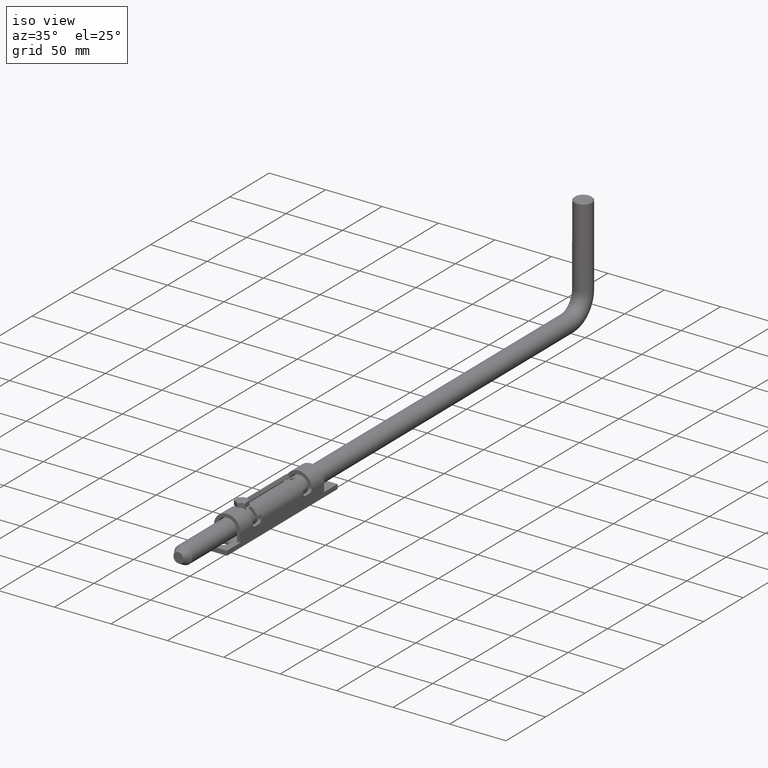
[diagram: clean part render]
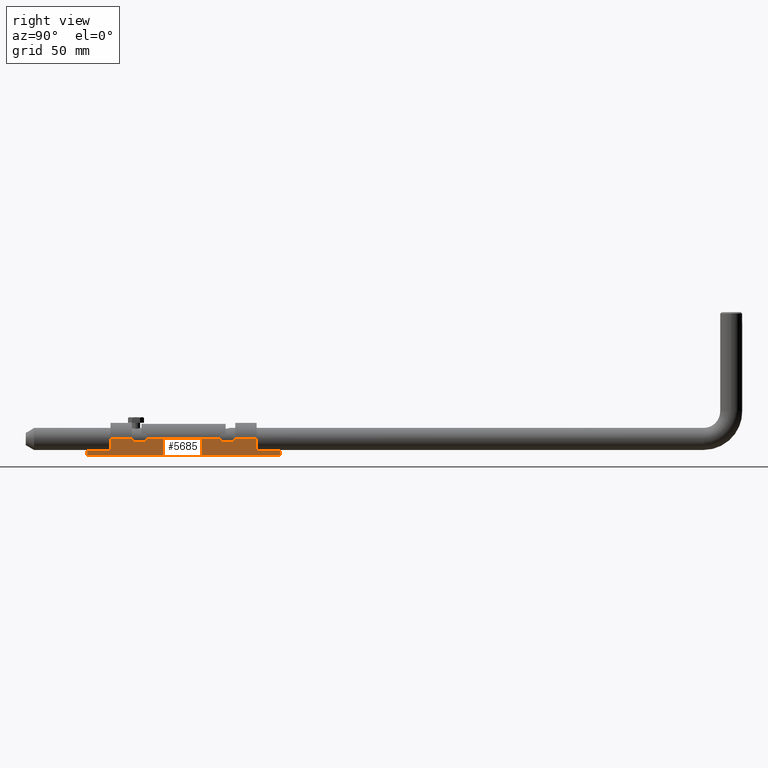
[diagram: tour spotlight — one face highlighted and labeled with its STEP entity id]
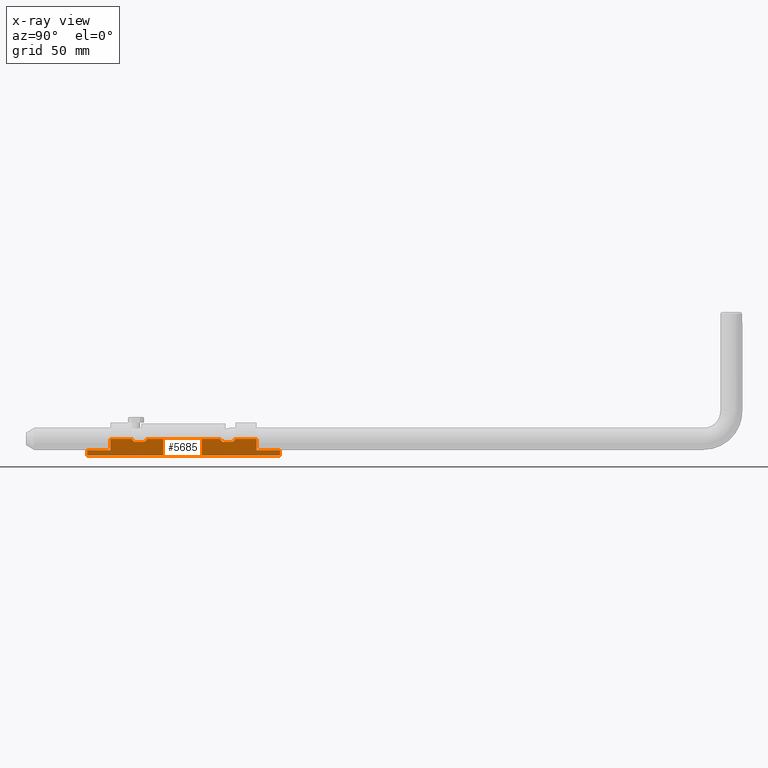
[diagram: x-ray of the same camera — body ghosted, this tour face saturated]
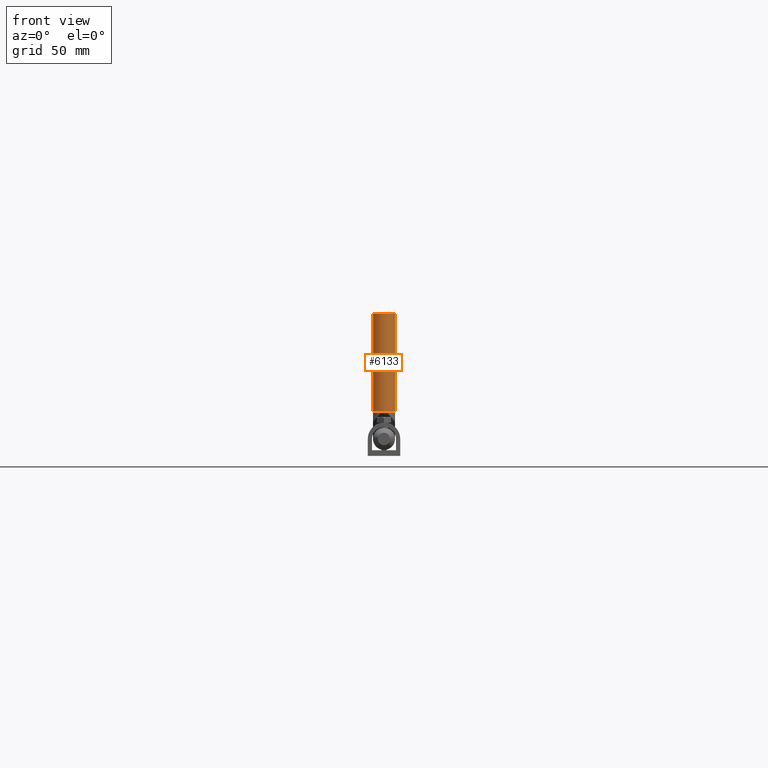
[diagram: tour spotlight — one face highlighted and labeled with its STEP entity id]
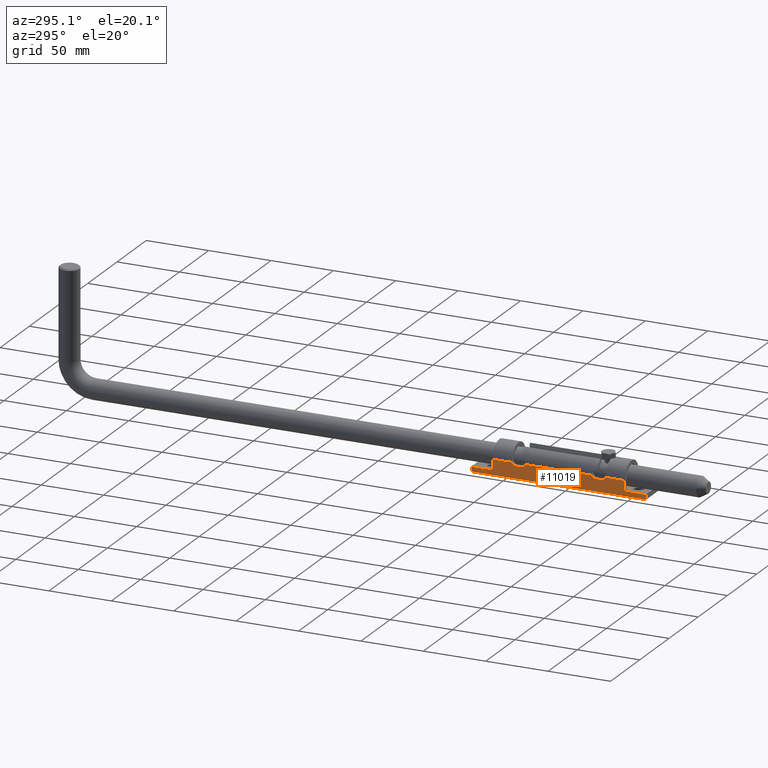
[diagram: tour spotlight — one face highlighted and labeled with its STEP entity id]
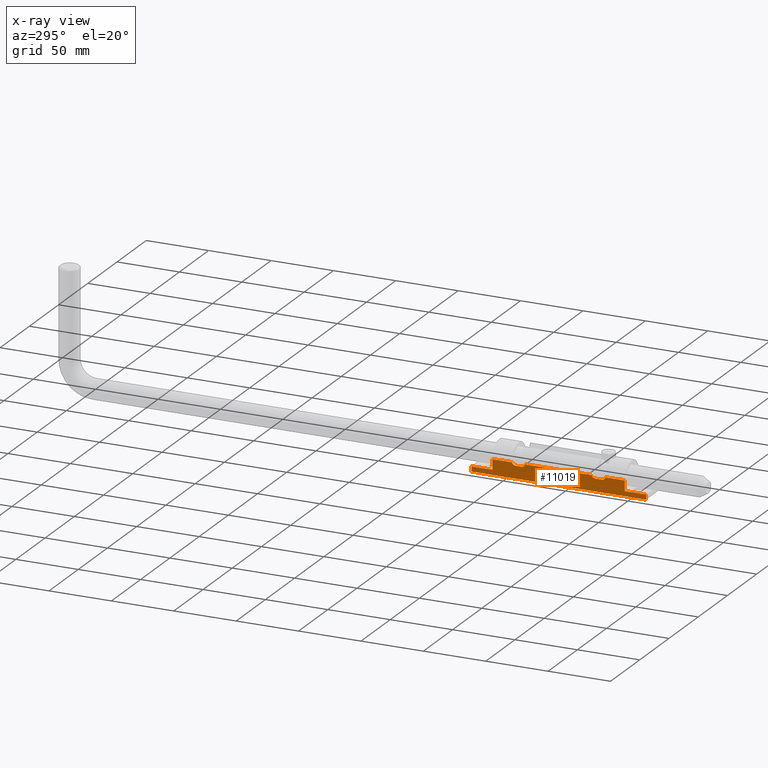
[diagram: x-ray of the same camera — body ghosted, this tour face saturated]
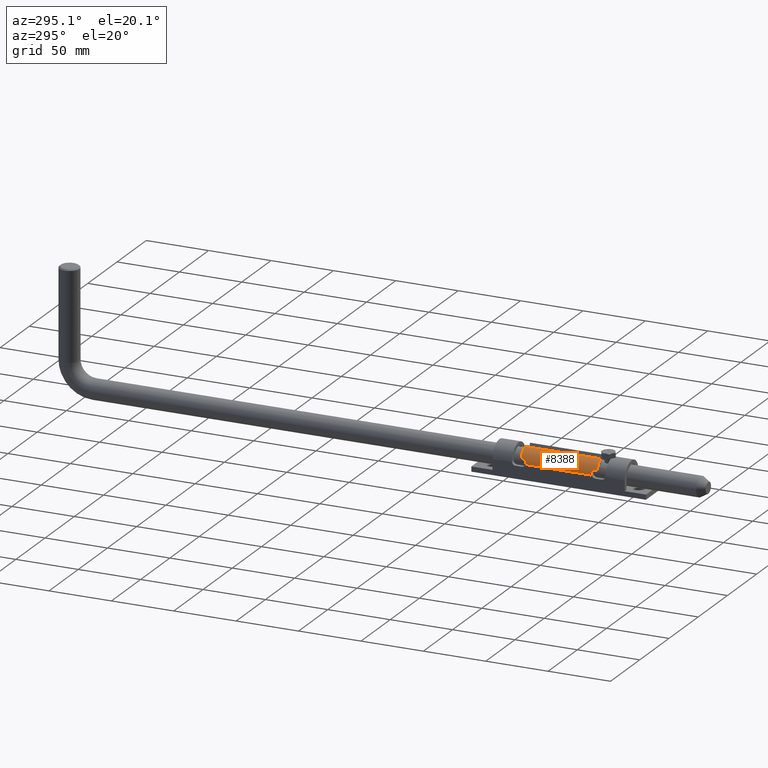
[diagram: tour spotlight — one face highlighted and labeled with its STEP entity id]
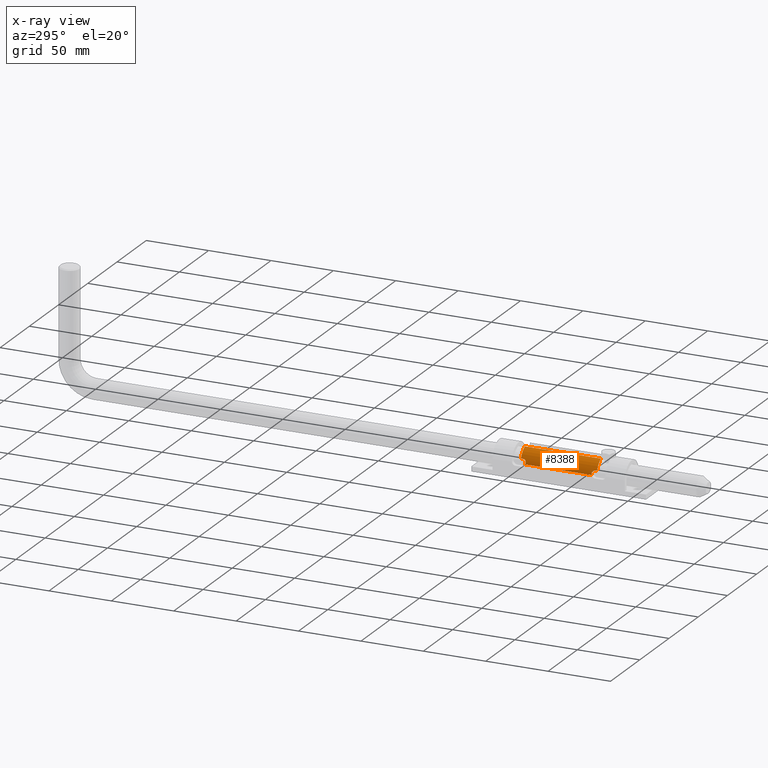
[diagram: x-ray of the same camera — body ghosted, this tour face saturated]
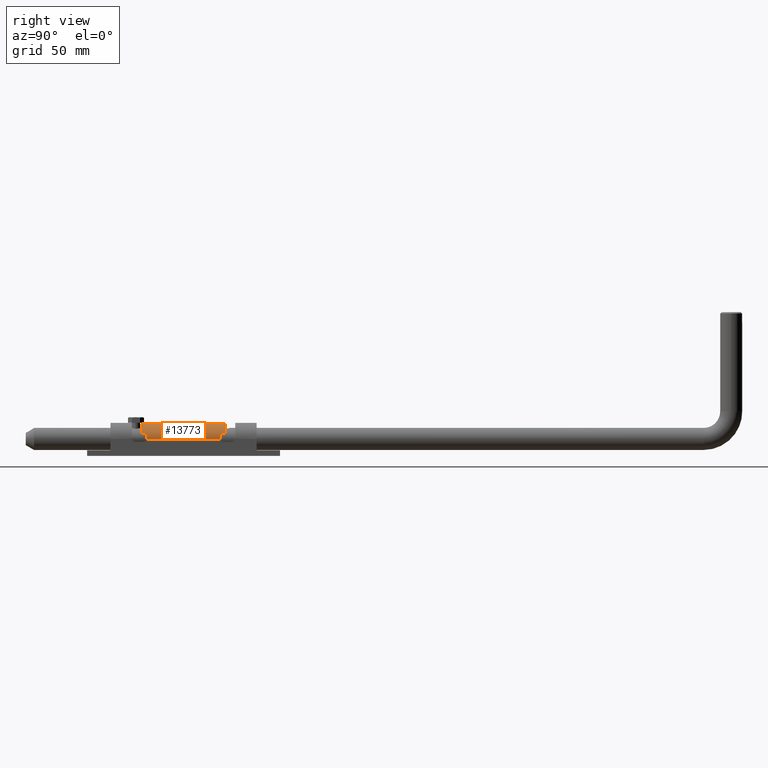
[diagram: tour spotlight — one face highlighted and labeled with its STEP entity id]
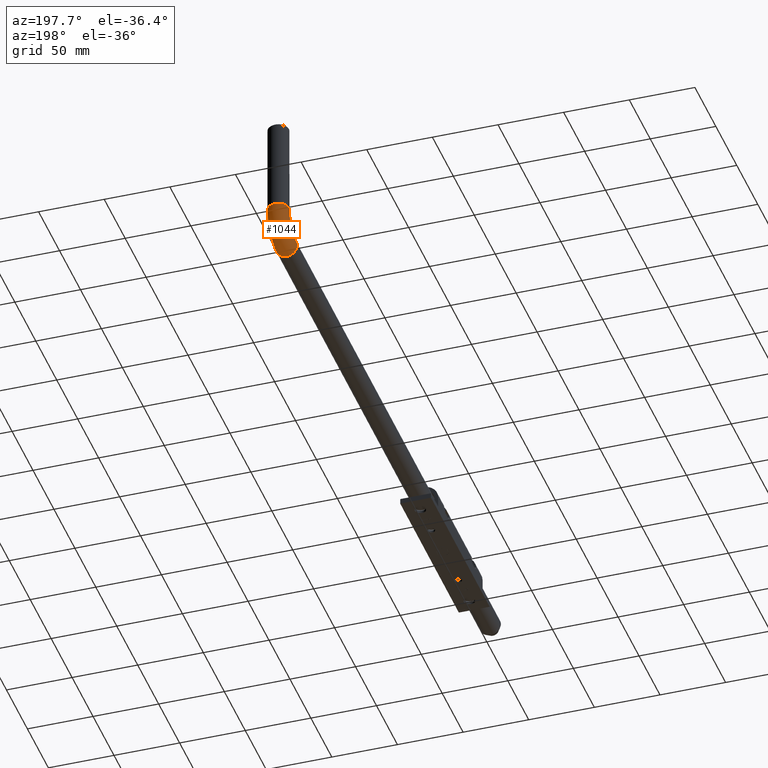
[diagram: tour spotlight — one face highlighted and labeled with its STEP entity id]
A machine part: a face-by-face anatomy tour. The part has 329 B-rep faces; the first image is the clean iso view, then the 6 largest visible faces are spotlighted one at a time (largest first), each with its STEP entity span.

Face 1 — right view, entity #5685. An x-ray twin of the same camera follows (body ghosted, this face saturated) — the face is partly hidden behind the body. In plain terms, the highlighted planar face has unit normal (-1, -0, 0).
Definition (entity closure, byte-faithful):
#109 = CIRCLE ( 'NONE', #14439, 3.000000000000002665 ) ;
#145 = ORIENTED_EDGE ( 'NONE', *, *, #15905, .T. ) ;
#244 = LINE ( 'NONE', #12305, #14376 ) ;
#396 = CARTESIAN_POINT ( 'NONE',  ( 11.74999999999999112, 70.00000000000000000, 2.000000000000001776 ) ) ;
#527 = LINE ( 'NONE', #8843, #7354 ) ;
#671 = VECTOR ( 'NONE', #3320, 1000.000000000000000 ) ;
#996 = VECTOR ( 'NONE', #7981, 1000.000000000000000 ) ;
#1017 = CARTESIAN_POINT ( 'NONE',  ( 11.75000000000000888, -70.00000000000000000, -2.000000000000001776 ) ) ;
#1029 = CARTESIAN_POINT ( 'NONE',  ( 11.74999999999998934, 37.40473750965556121, 10.25000000000000888 ) ) ;
#1090 = VERTEX_POINT ( 'NONE', #5280 ) ;
#1315 = VERTEX_POINT ( 'NONE', #396 ) ;
#1480 = VERTEX_POINT ( 'NONE', #1017 ) ;
#1537 = CARTESIAN_POINT ( 'NONE',  ( 11.74999999999999112, 70.00000000000000000, 2.000000000000001776 ) ) ;
#1592 = EDGE_CURVE ( 'NONE', #16178, #5548, #14505, .T. ) ;
#1649 = DIRECTION ( 'NONE',  ( -1.000000000000000000, -1.239088197126290817E-16, 0.000000000000000000 ) ) ;
#1915 = ORIENTED_EDGE ( 'NONE', *, *, #9092, .T. ) ;
#1934 = PLANE ( 'NONE',  #8190 ) ;
#2436 = ORIENTED_EDGE ( 'NONE', *, *, #11707, .T. ) ;
#2515 = VERTEX_POINT ( 'NONE', #16413 ) ;
#2621 = LINE ( 'NONE', #10146, #14415 ) ;
#2738 = EDGE_LOOP ( 'NONE', ( #13064, #11346, #16852, #17565, #13180, #1915, #17037, #2436, #5639, #15455, #3828, #10346, #145, #6957, #9065, #5035 ) ) ;
#2753 = CARTESIAN_POINT ( 'NONE',  ( 11.74999999999998934, -53.00000000000000000, 10.25000000000000888 ) ) ;
#2849 = LINE ( 'NONE', #1537, #12290 ) ;
#2880 = CARTESIAN_POINT ( 'NONE',  ( 11.74999999999998934, 53.00000000000000000, 10.25000000000000888 ) ) ;
#2952 = DIRECTION ( 'NONE',  ( 0.000000000000000000, 1.000000000000000000, 0.000000000000000000 ) ) ;
#3049 = VECTOR ( 'NONE', #9100, 1000.000000000000000 ) ;
#3320 = DIRECTION ( 'NONE',  ( -0.000000000000000000, -0.000000000000000000, -1.000000000000000000 ) ) ;
#3385 = CARTESIAN_POINT ( 'NONE',  ( 11.74999999999999645, 34.49999999999999289, 11.00000000000000000 ) ) ;
#3828 = ORIENTED_EDGE ( 'NONE', *, *, #1592, .F. ) ;
#3837 = CARTESIAN_POINT ( 'NONE',  ( 11.74999999999998934, -53.00000000000000000, 10.25000000000000888 ) ) ;
#4056 = CARTESIAN_POINT ( 'NONE',  ( 11.75000000000000888, -70.00000000000000000, 2.000000000000001776 ) ) ;
#4196 = CARTESIAN_POINT ( 'NONE',  ( 11.74999999999999112, -53.00000000000000000, 2.000000000000001776 ) ) ;
#4546 = EDGE_CURVE ( 'NONE', #13029, #2515, #527, .T. ) ;
#4666 = VECTOR ( 'NONE', #5742, 1000.000000000000000 ) ;
#4815 = DIRECTION ( 'NONE',  ( 0.000000000000000000, -1.000000000000000000, 0.000000000000000000 ) ) ;
#4883 = DIRECTION ( 'NONE',  ( 1.416100796715759877E-16, 0.000000000000000000, -1.000000000000000000 ) ) ;
#5035 = ORIENTED_EDGE ( 'NONE', *, *, #17414, .F. ) ;
#5101 = AXIS2_PLACEMENT_3D ( 'NONE', #9834, #1649, #11228 ) ;
#5280 = CARTESIAN_POINT ( 'NONE',  ( 11.75000000000000888, -29.50000000000000355, 8.000000000000000000 ) ) ;
#5544 = DIRECTION ( 'NONE',  ( -1.000000000000000000, -1.239088197126290817E-16, 0.000000000000000000 ) ) ;
#5548 = VERTEX_POINT ( 'NONE', #4196 ) ;
#5639 = ORIENTED_EDGE ( 'NONE', *, *, #9044, .T. ) ;
#5653 = VERTEX_POINT ( 'NONE', #17074 ) ;
#5685 = ADVANCED_FACE ( 'NONE', ( #6239 ), #1934, .F. ) ;
#5742 = DIRECTION ( 'NONE',  ( 0.000000000000000000, -1.000000000000000000, 0.000000000000000000 ) ) ;
#5833 = EDGE_CURVE ( 'NONE', #16178, #1480, #10337, .T. ) ;
#5920 = CARTESIAN_POINT ( 'NONE',  ( 11.74999999999999112, 70.00000000000000000, 2.000000000000001776 ) ) ;
#5962 = DIRECTION ( 'NONE',  ( -0.000000000000000000, -1.000000000000000000, -0.000000000000000000 ) ) ;
#6239 = FACE_OUTER_BOUND ( 'NONE', #2738, .T. ) ;
#6471 = CARTESIAN_POINT ( 'NONE',  ( 11.75000000000000355, -29.50000000000000355, 11.00000000000000000 ) ) ;
#6601 = CARTESIAN_POINT ( 'NONE',  ( 11.74999999999999112, 70.00000000000000000, 2.000000000000001776 ) ) ;
#6693 = CARTESIAN_POINT ( 'NONE',  ( 11.74999999999998934, 26.59526249034443524, 10.25000000000000888 ) ) ;
#6911 = VECTOR ( 'NONE', #15113, 1000.000000000000000 ) ;
#6957 = ORIENTED_EDGE ( 'NONE', *, *, #7468, .F. ) ;
#7354 = VECTOR ( 'NONE', #5962, 1000.000000000000000 ) ;
#7468 = EDGE_CURVE ( 'NONE', #1315, #16669, #7501, .T. ) ;
#7501 = LINE ( 'NONE', #8770, #671 ) ;
#7590 = CARTESIAN_POINT ( 'NONE',  ( 11.75000000000000888, -70.00000000000000000, 2.000000000000001776 ) ) ;
#7689 = EDGE_CURVE ( 'NONE', #17196, #15023, #244, .T. ) ;
#7710 = VECTOR ( 'NONE', #4883, 1000.000000000000000 ) ;
#7981 = DIRECTION ( 'NONE',  ( -1.239088197126290570E-16, 1.000000000000000000, -0.000000000000000000 ) ) ;
#8190 = AXIS2_PLACEMENT_3D ( 'NONE', #5920, #10011, #10184 ) ;
#8312 = DIRECTION ( 'NONE',  ( 0.000000000000000000, -1.000000000000000000, 0.000000000000000000 ) ) ;
#8322 = LINE ( 'NONE', #11518, #4666 ) ;
#8770 = CARTESIAN_POINT ( 'NONE',  ( 11.74999999999999112, 70.00000000000000000, 2.000000000000001776 ) ) ;
#8778 = CARTESIAN_POINT ( 'NONE',  ( 11.74999999999999112, 70.00000000000000000, -2.000000000000001776 ) ) ;
#8793 = CARTESIAN_POINT ( 'NONE',  ( 11.74999999999998934, 53.00000000000000000, 10.25000000000000888 ) ) ;
#8843 = CARTESIAN_POINT ( 'NONE',  ( 11.74999999999998934, 53.00000000000000000, 10.25000000000000888 ) ) ;
#8953 = VERTEX_POINT ( 'NONE', #17153 ) ;
#8975 = CARTESIAN_POINT ( 'NONE',  ( 11.75000000000000888, -34.49999999999999289, 8.000000000000000000 ) ) ;
#9044 = EDGE_CURVE ( 'NONE', #5653, #9276, #17564, .T. ) ;
#9065 = ORIENTED_EDGE ( 'NONE', *, *, #14759, .F. ) ;
#9092 = EDGE_CURVE ( 'NONE', #2515, #1090, #10709, .T. ) ;
#9100 = DIRECTION ( 'NONE',  ( -0.000000000000000000, -0.000000000000000000, -1.000000000000000000 ) ) ;
#9138 = AXIS2_PLACEMENT_3D ( 'NONE', #6471, #17388, #14767 ) ;
#9177 = VECTOR ( 'NONE', #2952, 1000.000000000000000 ) ;
#9276 = VERTEX_POINT ( 'NONE', #3837 ) ;
#9444 = EDGE_CURVE ( 'NONE', #13440, #1090, #12831, .T. ) ;
#9496 = LINE ( 'NONE', #2753, #6911 ) ;
#9581 = EDGE_CURVE ( 'NONE', #14346, #10054, #8322, .T. ) ;
#9777 = CARTESIAN_POINT ( 'NONE',  ( 11.75000000000000888, -37.50000000000000000, 8.000000000000000000 ) ) ;
#9834 = CARTESIAN_POINT ( 'NONE',  ( 11.74999999999999289, 29.50000000000000355, 11.00000000000000000 ) ) ;
#10011 = DIRECTION ( 'NONE',  ( -1.000000000000000000, -1.239088197126290817E-16, 0.000000000000000000 ) ) ;
#10054 = VERTEX_POINT ( 'NONE', #14707 ) ;
#10146 = CARTESIAN_POINT ( 'NONE',  ( 11.74999999999999112, 70.00000000000000000, -2.000000000000001776 ) ) ;
#10184 = DIRECTION ( 'NONE',  ( 1.239088197126290817E-16, -1.000000000000000000, 0.000000000000000000 ) ) ;
#10334 = EDGE_CURVE ( 'NONE', #10054, #13029, #12326, .T. ) ;
#10337 = LINE ( 'NONE', #7590, #3049 ) ;
#10346 = ORIENTED_EDGE ( 'NONE', *, *, #5833, .T. ) ;
#10709 = CIRCLE ( 'NONE', #9138, 2.999999999999999112 ) ;
#11228 = DIRECTION ( 'NONE',  ( 0.000000000000000000, -1.000000000000000000, 0.000000000000000000 ) ) ;
#11346 = ORIENTED_EDGE ( 'NONE', *, *, #11917, .T. ) ;
#11518 = CARTESIAN_POINT ( 'NONE',  ( 11.75000000000000888, 37.50000000000000000, 8.000000000000000000 ) ) ;
#11535 = DIRECTION ( 'NONE',  ( -1.239088197126290570E-16, 1.000000000000000000, -0.000000000000000000 ) ) ;
#11707 = EDGE_CURVE ( 'NONE', #13440, #5653, #16605, .T. ) ;
#11710 = CARTESIAN_POINT ( 'NONE',  ( 11.74999999999998934, 53.00000000000000000, 10.25000000000000888 ) ) ;
#11917 = EDGE_CURVE ( 'NONE', #15023, #14346, #109, .T. ) ;
#12290 = VECTOR ( 'NONE', #16561, 1000.000000000000000 ) ;
#12305 = CARTESIAN_POINT ( 'NONE',  ( 11.74999999999998934, 53.00000000000000000, 10.25000000000000888 ) ) ;
#12326 = CIRCLE ( 'NONE', #5101, 2.999999999999999112 ) ;
#12367 = DIRECTION ( 'NONE',  ( -0.000000000000000000, -1.000000000000000000, -0.000000000000000000 ) ) ;
#12831 = LINE ( 'NONE', #9777, #9177 ) ;
#13029 = VERTEX_POINT ( 'NONE', #6693 ) ;
#13064 = ORIENTED_EDGE ( 'NONE', *, *, #7689, .T. ) ;
#13180 = ORIENTED_EDGE ( 'NONE', *, *, #4546, .T. ) ;
#13440 = VERTEX_POINT ( 'NONE', #8975 ) ;
#13717 = CARTESIAN_POINT ( 'NONE',  ( 11.75000000000000355, -34.49999999999999289, 11.00000000000000000 ) ) ;
#14228 = DIRECTION ( 'NONE',  ( -0.000000000000000000, -1.000000000000000000, -0.000000000000000000 ) ) ;
#14343 = VECTOR ( 'NONE', #14228, 1000.000000000000000 ) ;
#14346 = VERTEX_POINT ( 'NONE', #15375 ) ;
#14376 = VECTOR ( 'NONE', #12367, 1000.000000000000000 ) ;
#14415 = VECTOR ( 'NONE', #11535, 1000.000000000000000 ) ;
#14439 = AXIS2_PLACEMENT_3D ( 'NONE', #3385, #17110, #4815 ) ;
#14505 = LINE ( 'NONE', #6601, #996 ) ;
#14594 = LINE ( 'NONE', #8793, #7710 ) ;
#14658 = AXIS2_PLACEMENT_3D ( 'NONE', #13717, #5544, #8312 ) ;
#14707 = CARTESIAN_POINT ( 'NONE',  ( 11.75000000000000888, 29.50000000000000355, 8.000000000000000000 ) ) ;
#14759 = EDGE_CURVE ( 'NONE', #8953, #1315, #2849, .T. ) ;
#14767 = DIRECTION ( 'NONE',  ( 0.000000000000000000, -1.000000000000000000, 0.000000000000000000 ) ) ;
#15023 = VERTEX_POINT ( 'NONE', #1029 ) ;
#15113 = DIRECTION ( 'NONE',  ( 1.416100796715759877E-16, 0.000000000000000000, -1.000000000000000000 ) ) ;
#15165 = EDGE_CURVE ( 'NONE', #9276, #5548, #9496, .T. ) ;
#15375 = CARTESIAN_POINT ( 'NONE',  ( 11.75000000000000888, 34.49999999999999289, 8.000000000000000000 ) ) ;
#15455 = ORIENTED_EDGE ( 'NONE', *, *, #15165, .T. ) ;
#15905 = EDGE_CURVE ( 'NONE', #1480, #16669, #2621, .T. ) ;
#16178 = VERTEX_POINT ( 'NONE', #4056 ) ;
#16413 = CARTESIAN_POINT ( 'NONE',  ( 11.74999999999998934, -26.59526249034443168, 10.25000000000000888 ) ) ;
#16561 = DIRECTION ( 'NONE',  ( -1.239088197126290570E-16, 1.000000000000000000, -0.000000000000000000 ) ) ;
#16605 = CIRCLE ( 'NONE', #14658, 3.000000000000002665 ) ;
#16669 = VERTEX_POINT ( 'NONE', #8778 ) ;
#16852 = ORIENTED_EDGE ( 'NONE', *, *, #9581, .T. ) ;
#17037 = ORIENTED_EDGE ( 'NONE', *, *, #9444, .F. ) ;
#17074 = CARTESIAN_POINT ( 'NONE',  ( 11.74999999999998934, -37.40473750965555411, 10.25000000000000888 ) ) ;
#17110 = DIRECTION ( 'NONE',  ( -1.000000000000000000, -1.239088197126290817E-16, 0.000000000000000000 ) ) ;
#17153 = CARTESIAN_POINT ( 'NONE',  ( 11.74999999999999112, 53.00000000000000000, 2.000000000000001776 ) ) ;
#17196 = VERTEX_POINT ( 'NONE', #2880 ) ;
#17388 = DIRECTION ( 'NONE',  ( -1.000000000000000000, -1.239088197126290817E-16, 0.000000000000000000 ) ) ;
#17414 = EDGE_CURVE ( 'NONE', #17196, #8953, #14594, .T. ) ;
#17564 = LINE ( 'NONE', #11710, #14343 ) ;
#17565 = ORIENTED_EDGE ( 'NONE', *, *, #10334, .T. ) ;

Face 2 — front view, entity #6133. In plain terms, the highlighted cylindrical surface (bore or boss wall) has radius 8 mm, axis along (0, 0, 1).
Definition (entity closure, byte-faithful):
#997 = DIRECTION ( 'NONE',  ( 0.000000000000000000, -1.734723475976805615E-16, 1.000000000000000000 ) ) ;
#1358 = EDGE_CURVE ( 'NONE', #13295, #13295, #5039, .T. ) ;
#1941 = CARTESIAN_POINT ( 'NONE',  ( 0.000000000000000000, 512.0000000000000000, 91.00000000000008527 ) ) ;
#2919 = EDGE_CURVE ( 'NONE', #8156, #8156, #4378, .T. ) ;
#3846 = DIRECTION ( 'NONE',  ( 0.000000000000000000, -1.000000000000000000, 0.000000000000000000 ) ) ;
#4378 = CIRCLE ( 'NONE', #17006, 8.000000000000007105 ) ;
#4860 = CARTESIAN_POINT ( 'NONE',  ( 0.000000000000000000, 504.0000000000000000, 20.00000000000000355 ) ) ;
#5039 = CIRCLE ( 'NONE', #9997, 8.000000000000000000 ) ;
#6019 = FACE_OUTER_BOUND ( 'NONE', #10489, .T. ) ;
#6133 = ADVANCED_FACE ( 'NONE', ( #6019, #8185 ), #7518, .T. ) ;
#6224 = AXIS2_PLACEMENT_3D ( 'NONE', #6392, #10310, #14447 ) ;
#6392 = CARTESIAN_POINT ( 'NONE',  ( 0.000000000000000000, 512.0000000000000000, 20.00000000000000355 ) ) ;
#7409 = EDGE_LOOP ( 'NONE', ( #17022 ) ) ;
#7487 = ORIENTED_EDGE ( 'NONE', *, *, #1358, .T. ) ;
#7518 = CYLINDRICAL_SURFACE ( 'NONE', #6224, 8.000000000000000000 ) ;
#8156 = VERTEX_POINT ( 'NONE', #4860 ) ;
#8185 = FACE_OUTER_BOUND ( 'NONE', #7409, .T. ) ;
#8757 = DIRECTION ( 'NONE',  ( -0.000000000000000000, -0.000000000000000000, -1.000000000000000000 ) ) ;
#9997 = AXIS2_PLACEMENT_3D ( 'NONE', #1941, #8757, #16970 ) ;
#10310 = DIRECTION ( 'NONE',  ( 0.000000000000000000, 0.000000000000000000, 1.000000000000000000 ) ) ;
#10489 = EDGE_LOOP ( 'NONE', ( #7487 ) ) ;
#13295 = VERTEX_POINT ( 'NONE', #14531 ) ;
#14447 = DIRECTION ( 'NONE',  ( 1.000000000000000000, 0.000000000000000000, 0.000000000000000000 ) ) ;
#14531 = CARTESIAN_POINT ( 'NONE',  ( 8.000000000000000000, 512.0000000000000000, 91.00000000000008527 ) ) ;
#16267 = CARTESIAN_POINT ( 'NONE',  ( 0.000000000000000000, 512.0000000000000000, 20.00000000000000355 ) ) ;
#16970 = DIRECTION ( 'NONE',  ( 1.000000000000000000, 0.000000000000000000, 0.000000000000000000 ) ) ;
#17006 = AXIS2_PLACEMENT_3D ( 'NONE', #16267, #997, #3846 ) ;
#17022 = ORIENTED_EDGE ( 'NONE', *, *, #2919, .T. ) ;

Face 3 — auxiliary view, entity #11019. An x-ray twin of the same camera follows (body ghosted, this face saturated) — the face is partly hidden behind the body. In plain terms, the highlighted planar face has unit normal (1, 0, 0).
Definition (entity closure, byte-faithful):
#28 = DIRECTION ( 'NONE',  ( -1.416100796715759877E-16, -0.000000000000000000, 1.000000000000000000 ) ) ;
#371 = LINE ( 'NONE', #6417, #8277 ) ;
#382 = VERTEX_POINT ( 'NONE', #6002 ) ;
#559 = LINE ( 'NONE', #5519, #5247 ) ;
#711 = CARTESIAN_POINT ( 'NONE',  ( -11.75000000000000888, 70.00000000000000000, 2.000000000000001776 ) ) ;
#799 = VERTEX_POINT ( 'NONE', #11465 ) ;
#858 = LINE ( 'NONE', #11809, #8359 ) ;
#906 = AXIS2_PLACEMENT_3D ( 'NONE', #16595, #13896, #16707 ) ;
#1045 = CARTESIAN_POINT ( 'NONE',  ( -11.75000000000000888, 70.00000000000000000, 2.000000000000001776 ) ) ;
#1303 = VERTEX_POINT ( 'NONE', #12660 ) ;
#1334 = DIRECTION ( 'NONE',  ( -1.416100796715759877E-16, -0.000000000000000000, 1.000000000000000000 ) ) ;
#1391 = VERTEX_POINT ( 'NONE', #9446 ) ;
#1403 = FACE_OUTER_BOUND ( 'NONE', #1794, .T. ) ;
#1538 = EDGE_CURVE ( 'NONE', #8459, #3956, #371, .T. ) ;
#1559 = VECTOR ( 'NONE', #11372, 1000.000000000000000 ) ;
#1794 = EDGE_LOOP ( 'NONE', ( #4598, #5729, #6806, #7591, #11605, #16712, #7888, #9368, #11734, #9811, #10050, #11895, #3341, #12829, #12469, #14804 ) ) ;
#1795 = EDGE_CURVE ( 'NONE', #5901, #2940, #559, .T. ) ;
#1803 = CARTESIAN_POINT ( 'NONE',  ( -11.75000000000001066, -34.49999999999999289, 8.000000000000000000 ) ) ;
#1837 = CARTESIAN_POINT ( 'NONE',  ( -11.75000000000001066, 53.00000000000000000, 10.25000000000000888 ) ) ;
#1975 = DIRECTION ( 'NONE',  ( 0.000000000000000000, 1.000000000000000000, 0.000000000000000000 ) ) ;
#2013 = DIRECTION ( 'NONE',  ( 1.000000000000000000, 1.239088197126290817E-16, -0.000000000000000000 ) ) ;
#2232 = AXIS2_PLACEMENT_3D ( 'NONE', #10038, #9856, #16751 ) ;
#2410 = DIRECTION ( 'NONE',  ( 1.000000000000000000, 1.239088197126290817E-16, -0.000000000000000000 ) ) ;
#2468 = CARTESIAN_POINT ( 'NONE',  ( -11.75000000000001066, -53.00000000000000000, 10.25000000000000888 ) ) ;
#2675 = LINE ( 'NONE', #2468, #8640 ) ;
#2778 = VECTOR ( 'NONE', #7266, 1000.000000000000000 ) ;
#2940 = VERTEX_POINT ( 'NONE', #10756 ) ;
#3029 = CARTESIAN_POINT ( 'NONE',  ( -11.74999999999999112, -70.00000000000000000, -2.000000000000001776 ) ) ;
#3175 = CARTESIAN_POINT ( 'NONE',  ( -11.74999999999999645, -34.49999999999999289, 11.00000000000000000 ) ) ;
#3268 = DIRECTION ( 'NONE',  ( 0.000000000000000000, 1.000000000000000000, 0.000000000000000000 ) ) ;
#3326 = CARTESIAN_POINT ( 'NONE',  ( -11.75000000000000355, 29.50000000000000355, 11.00000000000000000 ) ) ;
#3341 = ORIENTED_EDGE ( 'NONE', *, *, #6624, .T. ) ;
#3933 = CIRCLE ( 'NONE', #13521, 2.999999999999999112 ) ;
#3956 = VERTEX_POINT ( 'NONE', #12418 ) ;
#4005 = CARTESIAN_POINT ( 'NONE',  ( -11.75000000000001066, 53.00000000000000000, 10.25000000000000888 ) ) ;
#4513 = CIRCLE ( 'NONE', #2232, 3.000000000000002665 ) ;
#4548 = VERTEX_POINT ( 'NONE', #8603 ) ;
#4580 = CARTESIAN_POINT ( 'NONE',  ( -11.75000000000000888, 70.00000000000000000, 2.000000000000001776 ) ) ;
#4598 = ORIENTED_EDGE ( 'NONE', *, *, #1795, .F. ) ;
#4710 = CARTESIAN_POINT ( 'NONE',  ( -11.75000000000001066, -37.50000000000000000, 8.000000000000000000 ) ) ;
#4936 = LINE ( 'NONE', #4710, #9027 ) ;
#5145 = PLANE ( 'NONE',  #17645 ) ;
#5247 = VECTOR ( 'NONE', #8285, 1000.000000000000000 ) ;
#5519 = CARTESIAN_POINT ( 'NONE',  ( -11.75000000000001066, 37.50000000000000000, 8.000000000000000000 ) ) ;
#5729 = ORIENTED_EDGE ( 'NONE', *, *, #7185, .T. ) ;
#5863 = EDGE_CURVE ( 'NONE', #12984, #14200, #17189, .T. ) ;
#5901 = VERTEX_POINT ( 'NONE', #12221 ) ;
#6002 = CARTESIAN_POINT ( 'NONE',  ( -11.75000000000001066, 37.40473750965556121, 10.25000000000000888 ) ) ;
#6289 = CARTESIAN_POINT ( 'NONE',  ( -11.75000000000001066, -37.40473750965555411, 10.25000000000000888 ) ) ;
#6417 = CARTESIAN_POINT ( 'NONE',  ( -11.75000000000001066, 53.00000000000000000, 10.25000000000000888 ) ) ;
#6440 = EDGE_CURVE ( 'NONE', #9981, #17308, #9249, .T. ) ;
#6502 = LINE ( 'NONE', #14779, #14675 ) ;
#6624 = EDGE_CURVE ( 'NONE', #17308, #4548, #4936, .T. ) ;
#6806 = ORIENTED_EDGE ( 'NONE', *, *, #12020, .F. ) ;
#7183 = VERTEX_POINT ( 'NONE', #3029 ) ;
#7185 = EDGE_CURVE ( 'NONE', #5901, #382, #4513, .T. ) ;
#7266 = DIRECTION ( 'NONE',  ( 1.239088197126290570E-16, -1.000000000000000000, 0.000000000000000000 ) ) ;
#7591 = ORIENTED_EDGE ( 'NONE', *, *, #9765, .F. ) ;
#7707 = CARTESIAN_POINT ( 'NONE',  ( -11.75000000000000888, 70.00000000000000000, 2.000000000000001776 ) ) ;
#7879 = LINE ( 'NONE', #4005, #16484 ) ;
#7888 = ORIENTED_EDGE ( 'NONE', *, *, #8861, .T. ) ;
#8079 = EDGE_CURVE ( 'NONE', #9981, #1391, #858, .T. ) ;
#8142 = CARTESIAN_POINT ( 'NONE',  ( -11.75000000000000888, 53.00000000000000000, 2.000000000000001776 ) ) ;
#8226 = VECTOR ( 'NONE', #14299, 1000.000000000000000 ) ;
#8277 = VECTOR ( 'NONE', #15793, 1000.000000000000000 ) ;
#8285 = DIRECTION ( 'NONE',  ( 0.000000000000000000, -1.000000000000000000, 0.000000000000000000 ) ) ;
#8359 = VECTOR ( 'NONE', #14568, 1000.000000000000000 ) ;
#8424 = CIRCLE ( 'NONE', #906, 2.999999999999999112 ) ;
#8459 = VERTEX_POINT ( 'NONE', #15403 ) ;
#8603 = CARTESIAN_POINT ( 'NONE',  ( -11.75000000000001066, -29.50000000000000355, 8.000000000000000000 ) ) ;
#8628 = LINE ( 'NONE', #13241, #10136 ) ;
#8640 = VECTOR ( 'NONE', #28, 1000.000000000000000 ) ;
#8739 = CARTESIAN_POINT ( 'NONE',  ( -11.74999999999999289, -52.99999999999999289, 2.000000000000001776 ) ) ;
#8861 = EDGE_CURVE ( 'NONE', #799, #7183, #10066, .T. ) ;
#8893 = VERTEX_POINT ( 'NONE', #1837 ) ;
#9027 = VECTOR ( 'NONE', #1975, 1000.000000000000000 ) ;
#9249 = CIRCLE ( 'NONE', #14524, 3.000000000000002665 ) ;
#9368 = ORIENTED_EDGE ( 'NONE', *, *, #15026, .F. ) ;
#9446 = CARTESIAN_POINT ( 'NONE',  ( -11.75000000000001066, -53.00000000000000000, 10.25000000000000888 ) ) ;
#9765 = EDGE_CURVE ( 'NONE', #15182, #8893, #7879, .T. ) ;
#9811 = ORIENTED_EDGE ( 'NONE', *, *, #12624, .T. ) ;
#9856 = DIRECTION ( 'NONE',  ( 1.000000000000000000, 1.239088197126290817E-16, -0.000000000000000000 ) ) ;
#9981 = VERTEX_POINT ( 'NONE', #6289 ) ;
#10038 = CARTESIAN_POINT ( 'NONE',  ( -11.75000000000000355, 34.49999999999999289, 11.00000000000000000 ) ) ;
#10050 = ORIENTED_EDGE ( 'NONE', *, *, #8079, .F. ) ;
#10066 = LINE ( 'NONE', #15379, #2778 ) ;
#10136 = VECTOR ( 'NONE', #14623, 1000.000000000000000 ) ;
#10149 = LINE ( 'NONE', #711, #8226 ) ;
#10756 = CARTESIAN_POINT ( 'NONE',  ( -11.75000000000001066, 29.50000000000000355, 8.000000000000000000 ) ) ;
#11019 = ADVANCED_FACE ( 'NONE', ( #1403 ), #5145, .F. ) ;
#11372 = DIRECTION ( 'NONE',  ( -0.000000000000000000, -0.000000000000000000, -1.000000000000000000 ) ) ;
#11465 = CARTESIAN_POINT ( 'NONE',  ( -11.75000000000000888, 70.00000000000000000, -2.000000000000001776 ) ) ;
#11605 = ORIENTED_EDGE ( 'NONE', *, *, #14138, .F. ) ;
#11734 = ORIENTED_EDGE ( 'NONE', *, *, #5863, .F. ) ;
#11809 = CARTESIAN_POINT ( 'NONE',  ( -11.75000000000001066, 53.00000000000000000, 10.25000000000000888 ) ) ;
#11895 = ORIENTED_EDGE ( 'NONE', *, *, #6440, .T. ) ;
#12020 = EDGE_CURVE ( 'NONE', #8893, #382, #6502, .T. ) ;
#12057 = DIRECTION ( 'NONE',  ( -1.239088197126290817E-16, 1.000000000000000000, 0.000000000000000000 ) ) ;
#12221 = CARTESIAN_POINT ( 'NONE',  ( -11.75000000000001066, 34.49999999999999289, 8.000000000000000000 ) ) ;
#12418 = CARTESIAN_POINT ( 'NONE',  ( -11.75000000000001066, -26.59526249034443168, 10.25000000000000888 ) ) ;
#12469 = ORIENTED_EDGE ( 'NONE', *, *, #1538, .F. ) ;
#12579 = DIRECTION ( 'NONE',  ( 1.000000000000000000, 1.239088197126290817E-16, -0.000000000000000000 ) ) ;
#12624 = EDGE_CURVE ( 'NONE', #12984, #1391, #2675, .T. ) ;
#12660 = CARTESIAN_POINT ( 'NONE',  ( -11.75000000000000888, 70.00000000000000000, 2.000000000000001776 ) ) ;
#12829 = ORIENTED_EDGE ( 'NONE', *, *, #13985, .T. ) ;
#12984 = VERTEX_POINT ( 'NONE', #8739 ) ;
#13241 = CARTESIAN_POINT ( 'NONE',  ( -11.74999999999999112, -70.00000000000000000, 2.000000000000001776 ) ) ;
#13521 = AXIS2_PLACEMENT_3D ( 'NONE', #3326, #2013, #3268 ) ;
#13712 = EDGE_CURVE ( 'NONE', #8459, #2940, #3933, .T. ) ;
#13896 = DIRECTION ( 'NONE',  ( 1.000000000000000000, 1.239088197126290817E-16, -0.000000000000000000 ) ) ;
#13985 = EDGE_CURVE ( 'NONE', #4548, #3956, #8424, .T. ) ;
#14138 = EDGE_CURVE ( 'NONE', #1303, #15182, #10149, .T. ) ;
#14196 = LINE ( 'NONE', #4580, #1559 ) ;
#14200 = VERTEX_POINT ( 'NONE', #14662 ) ;
#14299 = DIRECTION ( 'NONE',  ( 1.239088197126290570E-16, -1.000000000000000000, 0.000000000000000000 ) ) ;
#14524 = AXIS2_PLACEMENT_3D ( 'NONE', #3175, #12579, #16772 ) ;
#14568 = DIRECTION ( 'NONE',  ( -0.000000000000000000, -1.000000000000000000, -0.000000000000000000 ) ) ;
#14623 = DIRECTION ( 'NONE',  ( -0.000000000000000000, -0.000000000000000000, -1.000000000000000000 ) ) ;
#14662 = CARTESIAN_POINT ( 'NONE',  ( -11.74999999999999112, -70.00000000000000000, 2.000000000000001776 ) ) ;
#14675 = VECTOR ( 'NONE', #16093, 1000.000000000000000 ) ;
#14779 = CARTESIAN_POINT ( 'NONE',  ( -11.75000000000001066, 53.00000000000000000, 10.25000000000000888 ) ) ;
#14804 = ORIENTED_EDGE ( 'NONE', *, *, #13712, .T. ) ;
#15026 = EDGE_CURVE ( 'NONE', #14200, #7183, #8628, .T. ) ;
#15182 = VERTEX_POINT ( 'NONE', #8142 ) ;
#15379 = CARTESIAN_POINT ( 'NONE',  ( -11.75000000000000888, 70.00000000000000000, -2.000000000000001776 ) ) ;
#15403 = CARTESIAN_POINT ( 'NONE',  ( -11.75000000000001066, 26.59526249034443524, 10.25000000000000888 ) ) ;
#15793 = DIRECTION ( 'NONE',  ( -0.000000000000000000, -1.000000000000000000, -0.000000000000000000 ) ) ;
#16093 = DIRECTION ( 'NONE',  ( -0.000000000000000000, -1.000000000000000000, -0.000000000000000000 ) ) ;
#16294 = DIRECTION ( 'NONE',  ( 1.239088197126290570E-16, -1.000000000000000000, 0.000000000000000000 ) ) ;
#16345 = VECTOR ( 'NONE', #16294, 1000.000000000000000 ) ;
#16484 = VECTOR ( 'NONE', #1334, 1000.000000000000000 ) ;
#16595 = CARTESIAN_POINT ( 'NONE',  ( -11.74999999999999645, -29.50000000000000355, 11.00000000000000000 ) ) ;
#16619 = EDGE_CURVE ( 'NONE', #1303, #799, #14196, .T. ) ;
#16707 = DIRECTION ( 'NONE',  ( 0.000000000000000000, 1.000000000000000000, 0.000000000000000000 ) ) ;
#16712 = ORIENTED_EDGE ( 'NONE', *, *, #16619, .T. ) ;
#16751 = DIRECTION ( 'NONE',  ( 0.000000000000000000, 1.000000000000000000, 0.000000000000000000 ) ) ;
#16772 = DIRECTION ( 'NONE',  ( 0.000000000000000000, 1.000000000000000000, 0.000000000000000000 ) ) ;
#17189 = LINE ( 'NONE', #7707, #16345 ) ;
#17308 = VERTEX_POINT ( 'NONE', #1803 ) ;
#17645 = AXIS2_PLACEMENT_3D ( 'NONE', #1045, #2410, #12057 ) ;

Face 4 — auxiliary view, entity #8388. An x-ray twin of the same camera follows (body ghosted, this face saturated) — the face is partly hidden behind the body. In plain terms, the highlighted cylindrical surface (edge-blend (fillet) strip) has radius 11.75 mm, axis along (-0, -1, -0).
Definition (entity closure, byte-faithful):
#110 = CARTESIAN_POINT ( 'NONE',  ( -11.59902278527208175, 26.50000000000000000, 12.13230500633290809 ) ) ;
#191 = ORIENTED_EDGE ( 'NONE', *, *, #3128, .T. ) ;
#256 = ORIENTED_EDGE ( 'NONE', *, *, #2597, .T. ) ;
#358 = EDGE_CURVE ( 'NONE', #17579, #13583, #17076, .T. ) ;
#371 = LINE ( 'NONE', #6417, #8277 ) ;
#375 = VERTEX_POINT ( 'NONE', #7390 ) ;
#628 = DIRECTION ( 'NONE',  ( 0.000000000000000000, 2.952720810173288619E-16, 1.000000000000000000 ) ) ;
#754 = CARTESIAN_POINT ( 'NONE',  ( -11.22310266195586870, -27.48792953223626867, 13.72999256034946747 ) ) ;
#813 = CARTESIAN_POINT ( 'NONE',  ( -11.59901283687334939, -26.50000000000001776, 12.13237105773170299 ) ) ;
#955 = ORIENTED_EDGE ( 'NONE', *, *, #16062, .F. ) ;
#978 = CARTESIAN_POINT ( 'NONE',  ( -11.08941230203073225, -30.01890289527550948, 14.13466171472503596 ) ) ;
#1145 = ORIENTED_EDGE ( 'NONE', *, *, #16903, .F. ) ;
#1258 = ORIENTED_EDGE ( 'NONE', *, *, #358, .T. ) ;
#1530 = FACE_OUTER_BOUND ( 'NONE', #17428, .T. ) ;
#1538 = EDGE_CURVE ( 'NONE', #8459, #3956, #371, .T. ) ;
#1595 = CARTESIAN_POINT ( 'NONE',  ( -11.13552872566004659, 29.49999999999999645, 14.00000000000000178 ) ) ;
#1625 = CIRCLE ( 'NONE', #11558, 11.75000000000000000 ) ;
#2176 = CARTESIAN_POINT ( 'NONE',  ( -11.34329456824893612, -26.98852508018998364, 13.31615569020849854 ) ) ;
#2223 = EDGE_CURVE ( 'NONE', #375, #12897, #7171, .T. ) ;
#2235 = CARTESIAN_POINT ( 'NONE',  ( -11.57715483953493241, -26.51300874366730653, 12.26215338081581230 ) ) ;
#2362 = CYLINDRICAL_SURFACE ( 'NONE', #10747, 11.75000000000000000 ) ;
#2529 = CARTESIAN_POINT ( 'NONE',  ( -10.74709263010234217, -30.49999999999999289, 15.00000000000000355 ) ) ;
#2597 = EDGE_CURVE ( 'NONE', #12049, #8459, #16247, .T. ) ;
#2604 = AXIS2_PLACEMENT_3D ( 'NONE', #3641, #7763, #10596 ) ;
#2627 = B_SPLINE_CURVE_WITH_KNOTS ( 'NONE', 3,
 ( #5098, #13389, #14716, #17398 ),
 .UNSPECIFIED., .F., .F.,
 ( 4, 4 ),
 ( 0.000000000000000000, 0.0007564053492936987071 ),
 .UNSPECIFIED. ) ;
#2671 = CARTESIAN_POINT ( 'NONE',  ( -11.15733099157518460, 27.97637431237724215, 13.93472726953474528 ) ) ;
#2850 = CARTESIAN_POINT ( 'NONE',  ( -11.22261991032523021, 27.49059530400067075, 13.73154439156919260 ) ) ;
#2903 = CARTESIAN_POINT ( 'NONE',  ( -10.85446202923889203, 30.47694239279664430, 14.75106745533729047 ) ) ;
#2943 = B_SPLINE_CURVE_WITH_KNOTS ( 'NONE', 3,
 ( #15254, #11121, #2903, #12484, #9784, #11234, #12714, #7253, #2958, #1595 ),
 .UNSPECIFIED., .F., .F.,
 ( 4, 2, 2, 2, 4 ),
 ( 0.000000000000000000, 0.0004055211236471862354, 0.0008110422472943724708, 0.001216563370941558652, 0.001622084494588744942 ),
 .UNSPECIFIED. ) ;
#2958 = CARTESIAN_POINT ( 'NONE',  ( -11.13552872566004659, 29.63735671021618501, 14.00000000000000533 ) ) ;
#3128 = EDGE_CURVE ( 'NONE', #4687, #15855, #2943, .T. ) ;
#3157 = ORIENTED_EDGE ( 'NONE', *, *, #10524, .T. ) ;
#3608 = CARTESIAN_POINT ( 'NONE',  ( -11.52998736952526215, -26.56358280330073995, 12.51686273626868484 ) ) ;
#3641 = CARTESIAN_POINT ( 'NONE',  ( 0.000000000000000000, -26.50000000000000355, 10.25000000000000888 ) ) ;
#3683 = CARTESIAN_POINT ( 'NONE',  ( -10.74709263010234217, 30.49999999999999645, 15.00000000000000355 ) ) ;
#3951 = VECTOR ( 'NONE', #9651, 1000.000000000000000 ) ;
#3956 = VERTEX_POINT ( 'NONE', #12418 ) ;
#3978 = CARTESIAN_POINT ( 'NONE',  ( -11.29173532165434857, 27.17180854455011030, 13.50089602834806790 ) ) ;
#3993 = CARTESIAN_POINT ( 'NONE',  ( 0.000000000000000000, -30.49999999999999289, 10.25000000000000888 ) ) ;
#4017 = ORIENTED_EDGE ( 'NONE', *, *, #1538, .T. ) ;
#4099 = CARTESIAN_POINT ( 'NONE',  ( -11.13552872566004659, -28.50000000000000355, 14.00000000000000178 ) ) ;
#4230 = ORIENTED_EDGE ( 'NONE', *, *, #5494, .F. ) ;
#4427 = CARTESIAN_POINT ( 'NONE',  ( 0.000000000000000000, 26.50000000000000355, 10.25000000000000888 ) ) ;
#4542 = ORIENTED_EDGE ( 'NONE', *, *, #15720, .T. ) ;
#4687 = VERTEX_POINT ( 'NONE', #3683 ) ;
#4737 = LINE ( 'NONE', #4853, #6453 ) ;
#4802 = CARTESIAN_POINT ( 'NONE',  ( -11.45167254714487193, -26.70114812111377134, 12.88379634779320959 ) ) ;
#4853 = CARTESIAN_POINT ( 'NONE',  ( -11.13552872566004659, 53.00000000000000000, 14.00000000000000178 ) ) ;
#4856 = CARTESIAN_POINT ( 'NONE',  ( -11.37062582054269200, -26.90512774511160643, 13.21373931045854455 ) ) ;
#4976 = CARTESIAN_POINT ( 'NONE',  ( -11.20316563356050032, -27.60474580410723178, 13.79322072546027123 ) ) ;
#5028 = DIRECTION ( 'NONE',  ( 0.000000000000000000, 1.000000000000000000, 0.000000000000000000 ) ) ;
#5098 = CARTESIAN_POINT ( 'NONE',  ( -11.75000000000001066, -26.59526249034443168, 10.25000000000000888 ) ) ;
#5164 = CARTESIAN_POINT ( 'NONE',  ( -11.72603939955857477, 26.50000000000000355, 11.00000000000000000 ) ) ;
#5305 = VERTEX_POINT ( 'NONE', #12004 ) ;
#5408 = CARTESIAN_POINT ( 'NONE',  ( -11.17034713903473531, 27.84815891167039936, 13.89536682951736246 ) ) ;
#5485 = B_SPLINE_CURVE_WITH_KNOTS ( 'NONE', 3,
 ( #7549, #813, #2235, #3608, #13201, #4802, #17154, #4856, #2176, #7675, #10509, #754, #4976, #15964, #7730, #17333 ),
 .UNSPECIFIED., .F., .F.,
 ( 4, 2, 2, 2, 2, 2, 2, 4 ),
 ( 0.000000000000000000, 0.0003957701966578874983, 0.0007915403933157749965, 0.001187310589973662603, 0.001583080786631549993, 0.001978850983289437166, 0.002374621179947325206, 0.003166161573263087843 ),
 .UNSPECIFIED. ) ;
#5494 = EDGE_CURVE ( 'NONE', #12049, #8806, #5620, .T. ) ;
#5539 = CARTESIAN_POINT ( 'NONE',  ( -11.61895003862225195, 26.50000000000000355, 12.00000000000000355 ) ) ;
#5541 = CARTESIAN_POINT ( 'NONE',  ( -11.74227057835120114, 26.50000000000000355, 10.74623007730182245 ) ) ;
#5620 = CIRCLE ( 'NONE', #17730, 11.75000000000000000 ) ;
#5728 = DIRECTION ( 'NONE',  ( 0.000000000000000000, 0.000000000000000000, -1.000000000000000000 ) ) ;
#5880 = CARTESIAN_POINT ( 'NONE',  ( -11.13552872566004659, 29.49999999999999645, 14.00000000000000178 ) ) ;
#5986 = CARTESIAN_POINT ( 'NONE',  ( 0.000000000000000000, 30.49999999999999645, 10.25000000000000888 ) ) ;
#6118 = VECTOR ( 'NONE', #14234, 1000.000000000000000 ) ;
#6417 = CARTESIAN_POINT ( 'NONE',  ( -11.75000000000001066, 53.00000000000000000, 10.25000000000000888 ) ) ;
#6453 = VECTOR ( 'NONE', #5028, 1000.000000000000000 ) ;
#6581 = CARTESIAN_POINT ( 'NONE',  ( -11.12608405116758092, -29.77196221652404517, 14.02834825401728835 ) ) ;
#6699 = CARTESIAN_POINT ( 'NONE',  ( 0.000000000000000000, 53.00000000000000000, 10.25000000000000888 ) ) ;
#6912 = CARTESIAN_POINT ( 'NONE',  ( -11.20303585374441724, 27.60546706920536053, 13.79363403697448121 ) ) ;
#6924 = CARTESIAN_POINT ( 'NONE',  ( -11.75000000000000000, 26.53169037340664715, 10.49621375018322844 ) ) ;
#7089 = ORIENTED_EDGE ( 'NONE', *, *, #13890, .T. ) ;
#7113 = DIRECTION ( 'NONE',  ( -0.000000000000000000, -1.000000000000000000, -0.000000000000000000 ) ) ;
#7171 = LINE ( 'NONE', #13678, #3951 ) ;
#7224 = B_SPLINE_CURVE_WITH_KNOTS ( 'NONE', 3,
 ( #12052, #10738, #6581, #978, #8026, #13488, #7965, #17620, #17563, #2529 ),
 .UNSPECIFIED., .F., .F.,
 ( 4, 2, 2, 2, 4 ),
 ( 3.469446951953614189E-18, 0.0004055422544884937017, 0.0008110845089769839339, 0.001216626763465474166, 0.001622169017953964398 ),
 .UNSPECIFIED. ) ;
#7253 = CARTESIAN_POINT ( 'NONE',  ( -11.12600533040533612, 29.77280910373476530, 14.02858197695130116 ) ) ;
#7390 = CARTESIAN_POINT ( 'NONE',  ( -4.364285714285712103, -30.50000000000000000, 21.15942300051115765 ) ) ;
#7549 = CARTESIAN_POINT ( 'NONE',  ( -11.61895003862225195, -26.50000000000000355, 12.00000000000000355 ) ) ;
#7675 = CARTESIAN_POINT ( 'NONE',  ( -11.29189391751297222, -27.17117624654970598, 13.50034984798519133 ) ) ;
#7726 = CIRCLE ( 'NONE', #16097, 11.75000000000000000 ) ;
#7730 = CARTESIAN_POINT ( 'NONE',  ( -11.13552872566004837, -28.23211319357095306, 14.00000000000000533 ) ) ;
#7763 = DIRECTION ( 'NONE',  ( 0.000000000000000000, 1.000000000000000000, -0.000000000000000000 ) ) ;
#7965 = CARTESIAN_POINT ( 'NONE',  ( -10.95004130770548478, -30.38272928398290418, 14.51324893938796912 ) ) ;
#8005 = CARTESIAN_POINT ( 'NONE',  ( -11.13552872566004659, -29.49999999999999289, 14.00000000000000178 ) ) ;
#8026 = CARTESIAN_POINT ( 'NONE',  ( -11.06197737069353337, -30.13064438921799493, 14.21298598301721761 ) ) ;
#8277 = VECTOR ( 'NONE', #15793, 1000.000000000000000 ) ;
#8298 = CARTESIAN_POINT ( 'NONE',  ( -11.36872337777694675, 26.89802764652331390, 13.22507563017994769 ) ) ;
#8388 = ADVANCED_FACE ( 'NONE', ( #1530 ), #2362, .T. ) ;
#8453 = CIRCLE ( 'NONE', #2604, 11.75000000000000000 ) ;
#8459 = VERTEX_POINT ( 'NONE', #15403 ) ;
#8806 = VERTEX_POINT ( 'NONE', #5539 ) ;
#9452 = DIRECTION ( 'NONE',  ( 0.000000000000000000, 1.000000000000000000, 2.478176394252582127E-16 ) ) ;
#9528 = CARTESIAN_POINT ( 'NONE',  ( -4.364285714285710327, 30.49999999999999289, 21.15942300051115765 ) ) ;
#9651 = DIRECTION ( 'NONE',  ( -0.000000000000000000, 1.000000000000000000, -0.000000000000000000 ) ) ;
#9675 = CARTESIAN_POINT ( 'NONE',  ( -11.61895003862225195, 26.50000000000000355, 12.00000000000000355 ) ) ;
#9784 = CARTESIAN_POINT ( 'NONE',  ( -10.99202630375708623, 30.31304923404685780, 14.40308638096939120 ) ) ;
#10027 = EDGE_CURVE ( 'NONE', #5305, #17579, #5485, .T. ) ;
#10051 = ORIENTED_EDGE ( 'NONE', *, *, #2223, .T. ) ;
#10219 = B_SPLINE_CURVE_WITH_KNOTS ( 'NONE', 3,
 ( #10833, #13703, #12199, #2671, #5408, #6912, #2850, #16518, #3978, #8298, #10894, #13580, #10951, #16400, #110, #9675 ),
 .UNSPECIFIED., .F., .F.,
 ( 4, 2, 2, 2, 2, 2, 2, 4 ),
 ( 0.000000000000000000, 0.0003957686090937860513, 0.0007915372181875721027, 0.001187305827281358262, 0.001583074436375144205, 0.002374611654562728234, 0.002770380263656517864, 0.003166148872750307493 ),
 .UNSPECIFIED. ) ;
#10509 = CARTESIAN_POINT ( 'NONE',  ( -11.26757189815684690, -27.27091627975871191, 13.58319742900936156 ) ) ;
#10524 = EDGE_CURVE ( 'NONE', #3956, #16668, #2627, .T. ) ;
#10596 = DIRECTION ( 'NONE',  ( 0.000000000000000000, 0.000000000000000000, 1.000000000000000000 ) ) ;
#10738 = CARTESIAN_POINT ( 'NONE',  ( -11.13552872566004837, -29.63716330902627760, 13.99999999999999645 ) ) ;
#10747 = AXIS2_PLACEMENT_3D ( 'NONE', #6699, #7113, #5728 ) ;
#10833 = CARTESIAN_POINT ( 'NONE',  ( -11.13552872566004659, 28.50000000000000355, 14.00000000000000178 ) ) ;
#10894 = CARTESIAN_POINT ( 'NONE',  ( -11.42534690570260913, 26.75095908996399174, 13.00387121283509373 ) ) ;
#10951 = CARTESIAN_POINT ( 'NONE',  ( -11.52949978258607544, 26.56418971598887779, 12.51940206228215935 ) ) ;
#11121 = CARTESIAN_POINT ( 'NONE',  ( -10.80248855473622349, 30.49999999999999289, 14.87466418244832589 ) ) ;
#11234 = CARTESIAN_POINT ( 'NONE',  ( -11.06202042103216066, 30.13072019740466700, 14.21288694703098088 ) ) ;
#11532 = EDGE_CURVE ( 'NONE', #16668, #5305, #8453, .T. ) ;
#11543 = CARTESIAN_POINT ( 'NONE',  ( -11.13552872566004659, 53.00000000000000000, 14.00000000000000178 ) ) ;
#11558 = AXIS2_PLACEMENT_3D ( 'NONE', #3993, #9452, #12273 ) ;
#11575 = EDGE_CURVE ( 'NONE', #15296, #375, #1625, .T. ) ;
#11638 = VERTEX_POINT ( 'NONE', #12159 ) ;
#12004 = CARTESIAN_POINT ( 'NONE',  ( -11.61895003862225195, -26.50000000000000355, 12.00000000000000355 ) ) ;
#12049 = VERTEX_POINT ( 'NONE', #5164 ) ;
#12052 = CARTESIAN_POINT ( 'NONE',  ( -11.13552872566004659, -29.49999999999999289, 14.00000000000000178 ) ) ;
#12159 = CARTESIAN_POINT ( 'NONE',  ( -11.13552872566004659, 28.50000000000000355, 14.00000000000000178 ) ) ;
#12199 = CARTESIAN_POINT ( 'NONE',  ( -11.14003471147411695, 28.23466370146623561, 13.98669326190536566 ) ) ;
#12273 = DIRECTION ( 'NONE',  ( 0.000000000000000000, -2.952720810173288619E-16, 1.000000000000000000 ) ) ;
#12418 = CARTESIAN_POINT ( 'NONE',  ( -11.75000000000001066, -26.59526249034443168, 10.25000000000000888 ) ) ;
#12484 = CARTESIAN_POINT ( 'NONE',  ( -10.95013899435189941, 30.38274707733845759, 14.51302828820771929 ) ) ;
#12531 = DIRECTION ( 'NONE',  ( 0.000000000000000000, 0.000000000000000000, 1.000000000000000000 ) ) ;
#12714 = CARTESIAN_POINT ( 'NONE',  ( -11.08924603064185632, 30.01970361857934222, 14.13513820097085016 ) ) ;
#12897 = VERTEX_POINT ( 'NONE', #9528 ) ;
#13201 = CARTESIAN_POINT ( 'NONE',  ( -11.50439510773996332, -26.60171663789595797, 12.64302748285285283 ) ) ;
#13389 = CARTESIAN_POINT ( 'NONE',  ( -11.74999999999999645, -26.53169037340664715, 10.49621375018322844 ) ) ;
#13488 = CARTESIAN_POINT ( 'NONE',  ( -10.99256804818688416, -30.31182463941655314, 14.40163208356756464 ) ) ;
#13536 = CARTESIAN_POINT ( 'NONE',  ( -10.74709263010234217, -30.49999999999999289, 15.00000000000000355 ) ) ;
#13580 = CARTESIAN_POINT ( 'NONE',  ( -11.50389469392595565, 26.60257991368171204, 12.64538546254975238 ) ) ;
#13583 = VERTEX_POINT ( 'NONE', #8005 ) ;
#13678 = CARTESIAN_POINT ( 'NONE',  ( -4.364285714285710327, -37.50000000000000000, 21.15942300051115765 ) ) ;
#13703 = CARTESIAN_POINT ( 'NONE',  ( -11.13552872566004126, 28.36611623932542514, 13.99999999999999822 ) ) ;
#13769 = CARTESIAN_POINT ( 'NONE',  ( -11.72603939955857477, 26.50000000000000355, 11.00000000000000000 ) ) ;
#13890 = EDGE_CURVE ( 'NONE', #13583, #15296, #7224, .T. ) ;
#14179 = CARTESIAN_POINT ( 'NONE',  ( -11.72603939955857477, -26.50000000000000355, 11.00000000000000000 ) ) ;
#14234 = DIRECTION ( 'NONE',  ( -0.000000000000000000, -1.000000000000000000, -0.000000000000000000 ) ) ;
#14716 = CARTESIAN_POINT ( 'NONE',  ( -11.74227057835120114, -26.50000000000000355, 10.74623007730182245 ) ) ;
#15254 = CARTESIAN_POINT ( 'NONE',  ( -10.74709263010234217, 30.49999999999999645, 15.00000000000000355 ) ) ;
#15296 = VERTEX_POINT ( 'NONE', #13536 ) ;
#15357 = DIRECTION ( 'NONE',  ( 0.000000000000000000, 1.000000000000000000, -0.000000000000000000 ) ) ;
#15403 = CARTESIAN_POINT ( 'NONE',  ( -11.75000000000001066, 26.59526249034443524, 10.25000000000000888 ) ) ;
#15712 = DIRECTION ( 'NONE',  ( 0.000000000000000000, 1.000000000000000000, -2.478176394252582127E-16 ) ) ;
#15720 = EDGE_CURVE ( 'NONE', #11638, #8806, #10219, .T. ) ;
#15793 = DIRECTION ( 'NONE',  ( -0.000000000000000000, -1.000000000000000000, -0.000000000000000000 ) ) ;
#15855 = VERTEX_POINT ( 'NONE', #5880 ) ;
#15964 = CARTESIAN_POINT ( 'NONE',  ( -11.15432320927462051, -27.96664563951162563, 13.94525466406932779 ) ) ;
#16062 = EDGE_CURVE ( 'NONE', #11638, #15855, #4737, .T. ) ;
#16097 = AXIS2_PLACEMENT_3D ( 'NONE', #5986, #15712, #628 ) ;
#16247 = B_SPLINE_CURVE_WITH_KNOTS ( 'NONE', 3,
 ( #13769, #5541, #6924, #16643 ),
 .UNSPECIFIED., .F., .F.,
 ( 4, 4 ),
 ( 0.000000000000000000, 0.0007564053492936987071 ),
 .UNSPECIFIED. ) ;
#16301 = ORIENTED_EDGE ( 'NONE', *, *, #10027, .T. ) ;
#16354 = ORIENTED_EDGE ( 'NONE', *, *, #11532, .T. ) ;
#16400 = CARTESIAN_POINT ( 'NONE',  ( -11.57708641325968735, 26.51299897861877142, 12.26261549652704197 ) ) ;
#16518 = CARTESIAN_POINT ( 'NONE',  ( -11.26698871150967740, 27.27345971673130620, 13.58516332085982903 ) ) ;
#16643 = CARTESIAN_POINT ( 'NONE',  ( -11.75000000000001066, 26.59526249034443524, 10.25000000000000888 ) ) ;
#16668 = VERTEX_POINT ( 'NONE', #14179 ) ;
#16903 = EDGE_CURVE ( 'NONE', #4687, #12897, #7726, .T. ) ;
#17076 = LINE ( 'NONE', #11543, #6118 ) ;
#17154 = CARTESIAN_POINT ( 'NONE',  ( -11.42471616940882662, -26.76188231271256512, 12.99786147751265197 ) ) ;
#17333 = CARTESIAN_POINT ( 'NONE',  ( -11.13552872566004659, -28.50000000000000355, 14.00000000000000178 ) ) ;
#17398 = CARTESIAN_POINT ( 'NONE',  ( -11.72603939955857477, -26.50000000000000355, 11.00000000000000000 ) ) ;
#17428 = EDGE_LOOP ( 'NONE', ( #1145, #191, #955, #4542, #4230, #256, #4017, #3157, #16354, #16301, #1258, #7089, #17693, #10051 ) ) ;
#17563 = CARTESIAN_POINT ( 'NONE',  ( -10.80243863403154059, -30.50000000000000000, 14.87477713032987126 ) ) ;
#17579 = VERTEX_POINT ( 'NONE', #4099 ) ;
#17620 = CARTESIAN_POINT ( 'NONE',  ( -10.85513292126128704, -30.47639517133146470, 14.74942056507262755 ) ) ;
#17693 = ORIENTED_EDGE ( 'NONE', *, *, #11575, .T. ) ;
#17730 = AXIS2_PLACEMENT_3D ( 'NONE', #4427, #15357, #12531 ) ;

Face 5 — right view, entity #13773. In plain terms, the highlighted cylindrical surface (edge-blend (fillet) strip) has radius 11.75 mm, axis along (-0, -1, -0).
Definition (entity closure, byte-faithful):
#267 = EDGE_CURVE ( 'NONE', #15424, #13680, #4209, .T. ) ;
#308 = B_SPLINE_CURVE_WITH_KNOTS ( 'NONE', 3,
 ( #12075, #2368, #14899, #14959, #2603, #13572, #16211, #17528, #14718, #10637 ),
 .UNSPECIFIED., .F., .F.,
 ( 4, 2, 2, 2, 4 ),
 ( 0.000000000000000000, 0.0004055211236471871028, 0.0008110422472943742056, 0.001216563370941561254, 0.001622084494588748411 ),
 .UNSPECIFIED. ) ;
#326 = EDGE_CURVE ( 'NONE', #16967, #2515, #9707, .T. ) ;
#387 = EDGE_CURVE ( 'NONE', #13680, #820, #13871, .T. ) ;
#506 = CIRCLE ( 'NONE', #850, 11.75000000000000000 ) ;
#527 = LINE ( 'NONE', #8843, #7354 ) ;
#544 = FACE_OUTER_BOUND ( 'NONE', #15405, .T. ) ;
#693 = CARTESIAN_POINT ( 'NONE',  ( 11.13552872566004659, -28.50000000000000355, 14.00000000000000178 ) ) ;
#700 = DIRECTION ( 'NONE',  ( 0.000000000000000000, 1.000000000000000000, -2.478176394252582127E-16 ) ) ;
#706 = CIRCLE ( 'NONE', #7598, 11.75000000000000000 ) ;
#820 = VERTEX_POINT ( 'NONE', #13832 ) ;
#850 = AXIS2_PLACEMENT_3D ( 'NONE', #14398, #3428, #15723 ) ;
#901 = EDGE_CURVE ( 'NONE', #6056, #9169, #15237, .T. ) ;
#1032 = EDGE_CURVE ( 'NONE', #1695, #3998, #308, .T. ) ;
#1156 = DIRECTION ( 'NONE',  ( 0.000000000000000000, 1.000000000000000000, -0.000000000000000000 ) ) ;
#1235 = CARTESIAN_POINT ( 'NONE',  ( 10.74709263010234217, -30.49999999999999289, 15.00000000000000355 ) ) ;
#1561 = CARTESIAN_POINT ( 'NONE',  ( 4.364285714285715656, 30.49999999999999289, 21.15942300051115765 ) ) ;
#1568 = EDGE_CURVE ( 'NONE', #16158, #11303, #12232, .T. ) ;
#1635 = ORIENTED_EDGE ( 'NONE', *, *, #5524, .F. ) ;
#1695 = VERTEX_POINT ( 'NONE', #1235 ) ;
#2014 = CARTESIAN_POINT ( 'NONE',  ( 11.52949978258607544, -26.56418971598887779, 12.51940206228215935 ) ) ;
#2127 = CARTESIAN_POINT ( 'NONE',  ( 11.22310266195586870, 27.48792953223626867, 13.72999256034946747 ) ) ;
#2128 = CARTESIAN_POINT ( 'NONE',  ( 11.72603939955857477, -26.50000000000000355, 11.00000000000000000 ) ) ;
#2181 = CARTESIAN_POINT ( 'NONE',  ( 11.42471616940882662, 26.76188231271256512, 12.99786147751265197 ) ) ;
#2250 = ORIENTED_EDGE ( 'NONE', *, *, #1032, .T. ) ;
#2325 = DIRECTION ( 'NONE',  ( 0.000000000000000000, 1.000000000000000000, 0.000000000000000000 ) ) ;
#2368 = CARTESIAN_POINT ( 'NONE',  ( 10.80248855473622349, -30.49999999999999289, 14.87466418244832589 ) ) ;
#2474 = CARTESIAN_POINT ( 'NONE',  ( 11.12608405116758092, 29.77196221652404517, 14.02834825401728835 ) ) ;
#2485 = CARTESIAN_POINT ( 'NONE',  ( 11.13552872566004659, 28.50000000000000355, 14.00000000000000178 ) ) ;
#2515 = VERTEX_POINT ( 'NONE', #16413 ) ;
#2603 = CARTESIAN_POINT ( 'NONE',  ( 10.99202630375708623, -30.31304923404685780, 14.40308638096938942 ) ) ;
#2704 = CARTESIAN_POINT ( 'NONE',  ( 11.72603939955857477, 26.50000000000000355, 11.00000000000000000 ) ) ;
#2748 = B_SPLINE_CURVE_WITH_KNOTS ( 'NONE', 3,
 ( #10279, #15799, #15858, #6121 ),
 .UNSPECIFIED., .F., .F.,
 ( 4, 4 ),
 ( 0.000000000000000000, 0.0007564053492936987071 ),
 .UNSPECIFIED. ) ;
#2829 = DIRECTION ( 'NONE',  ( 0.000000000000000000, 0.000000000000000000, 1.000000000000000000 ) ) ;
#3093 = DIRECTION ( 'NONE',  ( -0.000000000000000000, 1.000000000000000000, -0.000000000000000000 ) ) ;
#3218 = CARTESIAN_POINT ( 'NONE',  ( 11.36872337777694675, -26.89802764652331390, 13.22507563017994769 ) ) ;
#3269 = CARTESIAN_POINT ( 'NONE',  ( 11.20303585374441724, -27.60546706920536053, 13.79363403697448121 ) ) ;
#3428 = DIRECTION ( 'NONE',  ( 0.000000000000000000, 1.000000000000000000, 2.478176394252582127E-16 ) ) ;
#3772 = ORIENTED_EDGE ( 'NONE', *, *, #387, .F. ) ;
#3877 = VECTOR ( 'NONE', #6152, 1000.000000000000000 ) ;
#3964 = CARTESIAN_POINT ( 'NONE',  ( 11.13552872566004837, 28.23211319357095306, 14.00000000000000533 ) ) ;
#3998 = VERTEX_POINT ( 'NONE', #5569 ) ;
#4209 = LINE ( 'NONE', #6923, #4409 ) ;
#4409 = VECTOR ( 'NONE', #3093, 1000.000000000000000 ) ;
#4546 = EDGE_CURVE ( 'NONE', #13029, #2515, #527, .T. ) ;
#4733 = LINE ( 'NONE', #7776, #3877 ) ;
#4752 = CARTESIAN_POINT ( 'NONE',  ( 11.59902278527208175, -26.50000000000000000, 12.13230500633290809 ) ) ;
#4944 = ORIENTED_EDGE ( 'NONE', *, *, #12544, .T. ) ;
#4981 = CARTESIAN_POINT ( 'NONE',  ( 11.59901283687334939, 26.50000000000001776, 12.13237105773170299 ) ) ;
#5037 = CARTESIAN_POINT ( 'NONE',  ( 11.50439510773996332, 26.60171663789595797, 12.64302748285285283 ) ) ;
#5082 = DIRECTION ( 'NONE',  ( 0.000000000000000000, 0.000000000000000000, 1.000000000000000000 ) ) ;
#5150 = EDGE_CURVE ( 'NONE', #15424, #1695, #506, .T. ) ;
#5327 = CARTESIAN_POINT ( 'NONE',  ( 11.06197737069353337, 30.13064438921799493, 14.21298598301721761 ) ) ;
#5524 = EDGE_CURVE ( 'NONE', #16158, #12895, #706, .T. ) ;
#5569 = CARTESIAN_POINT ( 'NONE',  ( 11.13552872566004659, -29.49999999999999289, 14.00000000000000178 ) ) ;
#5962 = DIRECTION ( 'NONE',  ( -0.000000000000000000, -1.000000000000000000, -0.000000000000000000 ) ) ;
#6009 = CARTESIAN_POINT ( 'NONE',  ( 11.22261991032523021, -27.49059530400067075, 13.73154439156919260 ) ) ;
#6056 = VERTEX_POINT ( 'NONE', #693 ) ;
#6116 = EDGE_CURVE ( 'NONE', #14535, #11303, #4733, .T. ) ;
#6121 = CARTESIAN_POINT ( 'NONE',  ( 11.72603939955857477, 26.50000000000000355, 11.00000000000000000 ) ) ;
#6152 = DIRECTION ( 'NONE',  ( -0.000000000000000000, -1.000000000000000000, -0.000000000000000000 ) ) ;
#6693 = CARTESIAN_POINT ( 'NONE',  ( 11.74999999999998934, 26.59526249034443524, 10.25000000000000888 ) ) ;
#6803 = ORIENTED_EDGE ( 'NONE', *, *, #6116, .F. ) ;
#6923 = CARTESIAN_POINT ( 'NONE',  ( 4.364285714285713880, -37.50000000000000000, 21.15942300051115765 ) ) ;
#7330 = CARTESIAN_POINT ( 'NONE',  ( 11.74227057835120114, -26.50000000000000355, 10.74623007730182245 ) ) ;
#7354 = VECTOR ( 'NONE', #5962, 1000.000000000000000 ) ;
#7454 = CARTESIAN_POINT ( 'NONE',  ( 0.000000000000000000, 53.00000000000000000, 10.25000000000000888 ) ) ;
#7455 = CARTESIAN_POINT ( 'NONE',  ( 11.14003471147411695, -28.23466370146623561, 13.98669326190536566 ) ) ;
#7560 = AXIS2_PLACEMENT_3D ( 'NONE', #8887, #700, #11656 ) ;
#7586 = VECTOR ( 'NONE', #2325, 1000.000000000000000 ) ;
#7588 = CARTESIAN_POINT ( 'NONE',  ( 11.13552872566004659, 28.50000000000000355, 14.00000000000000178 ) ) ;
#7598 = AXIS2_PLACEMENT_3D ( 'NONE', #9776, #11168, #2829 ) ;
#7620 = CARTESIAN_POINT ( 'NONE',  ( 11.15432320927462051, 27.96664563951162563, 13.94525466406932779 ) ) ;
#7776 = CARTESIAN_POINT ( 'NONE',  ( 11.13552872566004659, 53.00000000000000000, 14.00000000000000178 ) ) ;
#7798 = CARTESIAN_POINT ( 'NONE',  ( 11.34329456824893612, 26.98852508018998364, 13.31615569020849854 ) ) ;
#7848 = CARTESIAN_POINT ( 'NONE',  ( 11.13552872566004837, 29.63716330902627760, 13.99999999999999645 ) ) ;
#7971 = CARTESIAN_POINT ( 'NONE',  ( 10.95004130770548478, 30.38272928398290418, 14.51324893938796912 ) ) ;
#8073 = ORIENTED_EDGE ( 'NONE', *, *, #11005, .T. ) ;
#8659 = DIRECTION ( 'NONE',  ( -0.000000000000000000, -1.000000000000000000, -0.000000000000000000 ) ) ;
#8835 = CARTESIAN_POINT ( 'NONE',  ( 11.42534690570260913, -26.75095908996399174, 13.00387121283509373 ) ) ;
#8843 = CARTESIAN_POINT ( 'NONE',  ( 11.74999999999998934, 53.00000000000000000, 10.25000000000000888 ) ) ;
#8887 = CARTESIAN_POINT ( 'NONE',  ( 0.000000000000000000, 30.49999999999999645, 10.25000000000000888 ) ) ;
#9122 = ORIENTED_EDGE ( 'NONE', *, *, #326, .T. ) ;
#9124 = CARTESIAN_POINT ( 'NONE',  ( 11.61895003862225195, -26.50000000000000355, 12.00000000000000355 ) ) ;
#9169 = VERTEX_POINT ( 'NONE', #9124 ) ;
#9231 = CARTESIAN_POINT ( 'NONE',  ( 11.13552872566004659, 29.49999999999999645, 14.00000000000000178 ) ) ;
#9707 = B_SPLINE_CURVE_WITH_KNOTS ( 'NONE', 3,
 ( #2128, #7330, #10154, #11719 ),
 .UNSPECIFIED., .F., .F.,
 ( 4, 4 ),
 ( 0.000000000000000000, 0.0007564053492936987071 ),
 .UNSPECIFIED. ) ;
#9776 = CARTESIAN_POINT ( 'NONE',  ( 0.000000000000000000, 26.50000000000000355, 10.25000000000000888 ) ) ;
#9857 = ORIENTED_EDGE ( 'NONE', *, *, #4546, .F. ) ;
#9869 = B_SPLINE_CURVE_WITH_KNOTS ( 'NONE', 3,
 ( #9231, #7848, #2474, #10872, #5327, #14944, #7971, #13435, #14881, #16074 ),
 .UNSPECIFIED., .F., .F.,
 ( 4, 2, 2, 2, 4 ),
 ( 0.000000000000000000, 0.0004055422544884914791, 0.0008110845089769829581, 0.001216626763465474383, 0.001622169017953965916 ),
 .UNSPECIFIED. ) ;
#10103 = CARTESIAN_POINT ( 'NONE',  ( 11.15733099157518460, -27.97637431237724215, 13.93472726953474528 ) ) ;
#10154 = CARTESIAN_POINT ( 'NONE',  ( 11.75000000000000000, -26.53169037340664715, 10.49621375018322844 ) ) ;
#10159 = DIRECTION ( 'NONE',  ( 0.000000000000000000, 0.000000000000000000, -1.000000000000000000 ) ) ;
#10215 = CARTESIAN_POINT ( 'NONE',  ( 11.50389469392595565, -26.60257991368171204, 12.64538546254975238 ) ) ;
#10279 = CARTESIAN_POINT ( 'NONE',  ( 11.74999999999998934, 26.59526249034443524, 10.25000000000000888 ) ) ;
#10329 = CARTESIAN_POINT ( 'NONE',  ( 11.26757189815684690, 27.27091627975871191, 13.58319742900936156 ) ) ;
#10571 = CARTESIAN_POINT ( 'NONE',  ( 11.29189391751297222, 27.17117624654970598, 13.50034984798519133 ) ) ;
#10637 = CARTESIAN_POINT ( 'NONE',  ( 11.13552872566004659, -29.49999999999999289, 14.00000000000000178 ) ) ;
#10674 = ORIENTED_EDGE ( 'NONE', *, *, #901, .T. ) ;
#10872 = CARTESIAN_POINT ( 'NONE',  ( 11.08941230203073225, 30.01890289527550948, 14.13466171472503063 ) ) ;
#11005 = EDGE_CURVE ( 'NONE', #14535, #820, #9869, .T. ) ;
#11125 = ORIENTED_EDGE ( 'NONE', *, *, #11892, .T. ) ;
#11168 = DIRECTION ( 'NONE',  ( 0.000000000000000000, 1.000000000000000000, -0.000000000000000000 ) ) ;
#11303 = VERTEX_POINT ( 'NONE', #7588 ) ;
#11478 = EDGE_CURVE ( 'NONE', #3998, #6056, #13614, .T. ) ;
#11496 = CARTESIAN_POINT ( 'NONE',  ( 11.17034713903473531, -27.84815891167039936, 13.89536682951736246 ) ) ;
#11602 = CARTESIAN_POINT ( 'NONE',  ( 11.57708641325968735, -26.51299897861877142, 12.26261549652704197 ) ) ;
#11656 = DIRECTION ( 'NONE',  ( 0.000000000000000000, 2.952720810173288619E-16, 1.000000000000000000 ) ) ;
#11708 = CARTESIAN_POINT ( 'NONE',  ( 11.61895003862225195, 26.50000000000000355, 12.00000000000000355 ) ) ;
#11719 = CARTESIAN_POINT ( 'NONE',  ( 11.74999999999998934, -26.59526249034443168, 10.25000000000000888 ) ) ;
#11892 = EDGE_CURVE ( 'NONE', #13029, #12895, #2748, .T. ) ;
#12075 = CARTESIAN_POINT ( 'NONE',  ( 10.74709263010234217, -30.49999999999999289, 15.00000000000000355 ) ) ;
#12232 = B_SPLINE_CURVE_WITH_KNOTS ( 'NONE', 3,
 ( #13207, #4981, #14532, #13268, #5037, #15906, #2181, #17157, #7798, #10571, #10329, #2127, #15852, #7620, #3964, #2485 ),
 .UNSPECIFIED., .F., .F.,
 ( 4, 2, 2, 2, 2, 2, 2, 4 ),
 ( 0.000000000000000000, 0.0003957701966578874983, 0.0007915403933157749965, 0.001187310589973662603, 0.001583080786631549993, 0.001978850983289437166, 0.002374621179947325206, 0.003166161573263087843 ),
 .UNSPECIFIED. ) ;
#12544 = EDGE_CURVE ( 'NONE', #9169, #16967, #13154, .T. ) ;
#12573 = CARTESIAN_POINT ( 'NONE',  ( 4.364285714285717432, -30.50000000000000000, 21.15942300051115765 ) ) ;
#12864 = CARTESIAN_POINT ( 'NONE',  ( 11.61895003862225195, -26.50000000000000355, 12.00000000000000355 ) ) ;
#12895 = VERTEX_POINT ( 'NONE', #2704 ) ;
#13029 = VERTEX_POINT ( 'NONE', #6693 ) ;
#13154 = CIRCLE ( 'NONE', #15701, 11.75000000000000000 ) ;
#13207 = CARTESIAN_POINT ( 'NONE',  ( 11.61895003862225195, 26.50000000000000355, 12.00000000000000355 ) ) ;
#13235 = CARTESIAN_POINT ( 'NONE',  ( 11.13552872566004659, 53.00000000000000000, 14.00000000000000178 ) ) ;
#13268 = CARTESIAN_POINT ( 'NONE',  ( 11.52998736952526215, 26.56358280330073995, 12.51686273626868484 ) ) ;
#13435 = CARTESIAN_POINT ( 'NONE',  ( 10.85513292126128704, 30.47639517133146470, 14.74942056507262755 ) ) ;
#13572 = CARTESIAN_POINT ( 'NONE',  ( 11.06202042103215888, -30.13072019740466700, 14.21288694703098088 ) ) ;
#13614 = LINE ( 'NONE', #13235, #7586 ) ;
#13680 = VERTEX_POINT ( 'NONE', #1561 ) ;
#13773 = ADVANCED_FACE ( 'NONE', ( #544 ), #16609, .T. ) ;
#13832 = CARTESIAN_POINT ( 'NONE',  ( 10.74709263010234217, 30.49999999999999645, 15.00000000000000355 ) ) ;
#13871 = CIRCLE ( 'NONE', #7560, 11.75000000000000000 ) ;
#14118 = CARTESIAN_POINT ( 'NONE',  ( 11.13552872566004659, -28.50000000000000355, 14.00000000000000178 ) ) ;
#14296 = CARTESIAN_POINT ( 'NONE',  ( 11.29173532165434857, -27.17180854455011030, 13.50089602834806790 ) ) ;
#14398 = CARTESIAN_POINT ( 'NONE',  ( 0.000000000000000000, -30.49999999999999289, 10.25000000000000888 ) ) ;
#14532 = CARTESIAN_POINT ( 'NONE',  ( 11.57715483953493241, 26.51300874366730653, 12.26215338081581230 ) ) ;
#14535 = VERTEX_POINT ( 'NONE', #15960 ) ;
#14635 = CARTESIAN_POINT ( 'NONE',  ( 11.72603939955857477, -26.50000000000000355, 11.00000000000000000 ) ) ;
#14718 = CARTESIAN_POINT ( 'NONE',  ( 11.13552872566004659, -29.63735671021618856, 14.00000000000000178 ) ) ;
#14879 = ORIENTED_EDGE ( 'NONE', *, *, #267, .F. ) ;
#14881 = CARTESIAN_POINT ( 'NONE',  ( 10.80243863403154059, 30.50000000000000000, 14.87477713032986948 ) ) ;
#14899 = CARTESIAN_POINT ( 'NONE',  ( 10.85446202923889203, -30.47694239279664430, 14.75106745533728869 ) ) ;
#14944 = CARTESIAN_POINT ( 'NONE',  ( 10.99256804818688416, 30.31182463941655314, 14.40163208356756108 ) ) ;
#14959 = CARTESIAN_POINT ( 'NONE',  ( 10.95013899435189941, -30.38274707733845759, 14.51302828820771751 ) ) ;
#15237 = B_SPLINE_CURVE_WITH_KNOTS ( 'NONE', 3,
 ( #14118, #17109, #7455, #10103, #11496, #3269, #6009, #17054, #14296, #3218, #8835, #10215, #2014, #11602, #4752, #12864 ),
 .UNSPECIFIED., .F., .F.,
 ( 4, 2, 2, 2, 2, 2, 2, 4 ),
 ( 0.000000000000000000, 0.0003957686090937860513, 0.0007915372181875721027, 0.001187305827281358262, 0.001583074436375144205, 0.002374611654562728234, 0.002770380263656517864, 0.003166148872750307493 ),
 .UNSPECIFIED. ) ;
#15405 = EDGE_LOOP ( 'NONE', ( #6803, #8073, #3772, #14879, #16221, #2250, #16222, #10674, #4944, #9122, #9857, #11125, #1635, #16776 ) ) ;
#15424 = VERTEX_POINT ( 'NONE', #12573 ) ;
#15604 = AXIS2_PLACEMENT_3D ( 'NONE', #7454, #8659, #10159 ) ;
#15701 = AXIS2_PLACEMENT_3D ( 'NONE', #17442, #1156, #5082 ) ;
#15723 = DIRECTION ( 'NONE',  ( 0.000000000000000000, -2.952720810173288619E-16, 1.000000000000000000 ) ) ;
#15799 = CARTESIAN_POINT ( 'NONE',  ( 11.74999999999999645, 26.53169037340664715, 10.49621375018322844 ) ) ;
#15852 = CARTESIAN_POINT ( 'NONE',  ( 11.20316563356050032, 27.60474580410723178, 13.79322072546027123 ) ) ;
#15858 = CARTESIAN_POINT ( 'NONE',  ( 11.74227057835120114, 26.50000000000000355, 10.74623007730182245 ) ) ;
#15906 = CARTESIAN_POINT ( 'NONE',  ( 11.45167254714487193, 26.70114812111377134, 12.88379634779320959 ) ) ;
#15960 = CARTESIAN_POINT ( 'NONE',  ( 11.13552872566004659, 29.49999999999999645, 14.00000000000000178 ) ) ;
#16074 = CARTESIAN_POINT ( 'NONE',  ( 10.74709263010234217, 30.49999999999999645, 15.00000000000000355 ) ) ;
#16158 = VERTEX_POINT ( 'NONE', #11708 ) ;
#16211 = CARTESIAN_POINT ( 'NONE',  ( 11.08924603064185810, -30.01970361857933867, 14.13513820097084661 ) ) ;
#16221 = ORIENTED_EDGE ( 'NONE', *, *, #5150, .T. ) ;
#16222 = ORIENTED_EDGE ( 'NONE', *, *, #11478, .T. ) ;
#16413 = CARTESIAN_POINT ( 'NONE',  ( 11.74999999999998934, -26.59526249034443168, 10.25000000000000888 ) ) ;
#16609 = CYLINDRICAL_SURFACE ( 'NONE', #15604, 11.75000000000000000 ) ;
#16776 = ORIENTED_EDGE ( 'NONE', *, *, #1568, .T. ) ;
#16967 = VERTEX_POINT ( 'NONE', #14635 ) ;
#17054 = CARTESIAN_POINT ( 'NONE',  ( 11.26698871150967740, -27.27345971673130620, 13.58516332085982903 ) ) ;
#17109 = CARTESIAN_POINT ( 'NONE',  ( 11.13552872566004126, -28.36611623932542514, 13.99999999999999822 ) ) ;
#17157 = CARTESIAN_POINT ( 'NONE',  ( 11.37062582054269200, 26.90512774511160643, 13.21373931045854455 ) ) ;
#17442 = CARTESIAN_POINT ( 'NONE',  ( 0.000000000000000000, -26.50000000000000355, 10.25000000000000888 ) ) ;
#17528 = CARTESIAN_POINT ( 'NONE',  ( 11.12600533040534145, -29.77280910373476530, 14.02858197695130116 ) ) ;

Face 6 — auxiliary view, entity #1044. In plain terms, the highlighted toroidal blend (fillet) surface has major radius 20 mm and minor (blend) radius 8 mm.
Definition (entity closure, byte-faithful):
#997 = DIRECTION ( 'NONE',  ( 0.000000000000000000, -1.734723475976805615E-16, 1.000000000000000000 ) ) ;
#1044 = ADVANCED_FACE ( 'NONE', ( #12783, #13209 ), #9996, .T. ) ;
#2757 = AXIS2_PLACEMENT_3D ( 'NONE', #12195, #6664, #7987 ) ;
#2919 = EDGE_CURVE ( 'NONE', #8156, #8156, #4378, .T. ) ;
#3846 = DIRECTION ( 'NONE',  ( 0.000000000000000000, -1.000000000000000000, 0.000000000000000000 ) ) ;
#4378 = CIRCLE ( 'NONE', #17006, 8.000000000000007105 ) ;
#4860 = CARTESIAN_POINT ( 'NONE',  ( 0.000000000000000000, 504.0000000000000000, 20.00000000000000355 ) ) ;
#5307 = EDGE_LOOP ( 'NONE', ( #9588 ) ) ;
#6664 = DIRECTION ( 'NONE',  ( 1.000000000000000000, 0.000000000000000000, 0.000000000000000000 ) ) ;
#7987 = DIRECTION ( 'NONE',  ( 0.000000000000000000, 0.000000000000000000, -1.000000000000000000 ) ) ;
#8156 = VERTEX_POINT ( 'NONE', #4860 ) ;
#8800 = DIRECTION ( 'NONE',  ( 0.000000000000000000, 0.000000000000000000, 1.000000000000000000 ) ) ;
#9588 = ORIENTED_EDGE ( 'NONE', *, *, #2919, .F. ) ;
#9630 = EDGE_CURVE ( 'NONE', #10302, #10302, #13259, .T. ) ;
#9996 = TOROIDAL_SURFACE ( 'NONE', #2757, 20.00000000000001066, 8.000000000000000000 ) ;
#10302 = VERTEX_POINT ( 'NONE', #17155 ) ;
#12045 = DIRECTION ( 'NONE',  ( 0.000000000000000000, 1.000000000000000000, 0.000000000000000000 ) ) ;
#12195 = CARTESIAN_POINT ( 'NONE',  ( 0.000000000000000000, 492.0000000000000000, 20.00000000000000000 ) ) ;
#12783 = FACE_OUTER_BOUND ( 'NONE', #5307, .T. ) ;
#13209 = FACE_OUTER_BOUND ( 'NONE', #15383, .T. ) ;
#13259 = CIRCLE ( 'NONE', #15912, 8.000000000000000000 ) ;
#13301 = CARTESIAN_POINT ( 'NONE',  ( 0.000000000000000000, 492.0000000000000000, 0.000000000000000000 ) ) ;
#15383 = EDGE_LOOP ( 'NONE', ( #17523 ) ) ;
#15912 = AXIS2_PLACEMENT_3D ( 'NONE', #13301, #12045, #8800 ) ;
#16267 = CARTESIAN_POINT ( 'NONE',  ( 0.000000000000000000, 512.0000000000000000, 20.00000000000000355 ) ) ;
#17006 = AXIS2_PLACEMENT_3D ( 'NONE', #16267, #997, #3846 ) ;
#17155 = CARTESIAN_POINT ( 'NONE',  ( 0.000000000000000000, 492.0000000000000000, 8.000000000000000000 ) ) ;
#17523 = ORIENTED_EDGE ( 'NONE', *, *, #9630, .T. ) ;